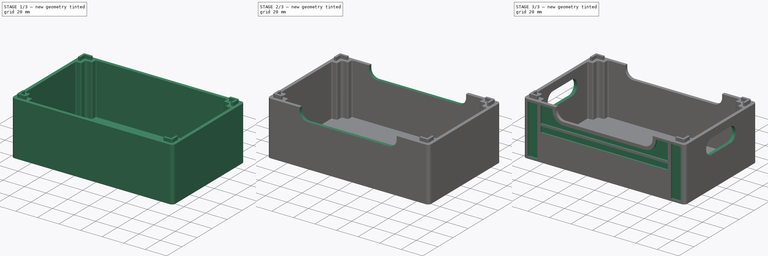
[diagram: build sequence overview — one tinted view per stage of 3, left to right]
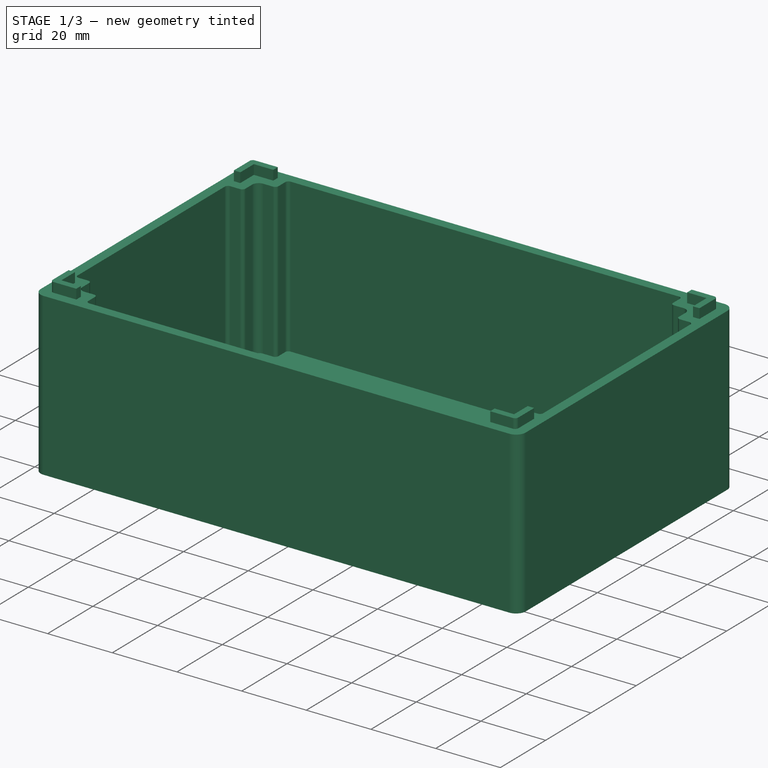
[diagram: stage 1 of 3 — iso view after this stage's code; geometry added in this stage tinted green]
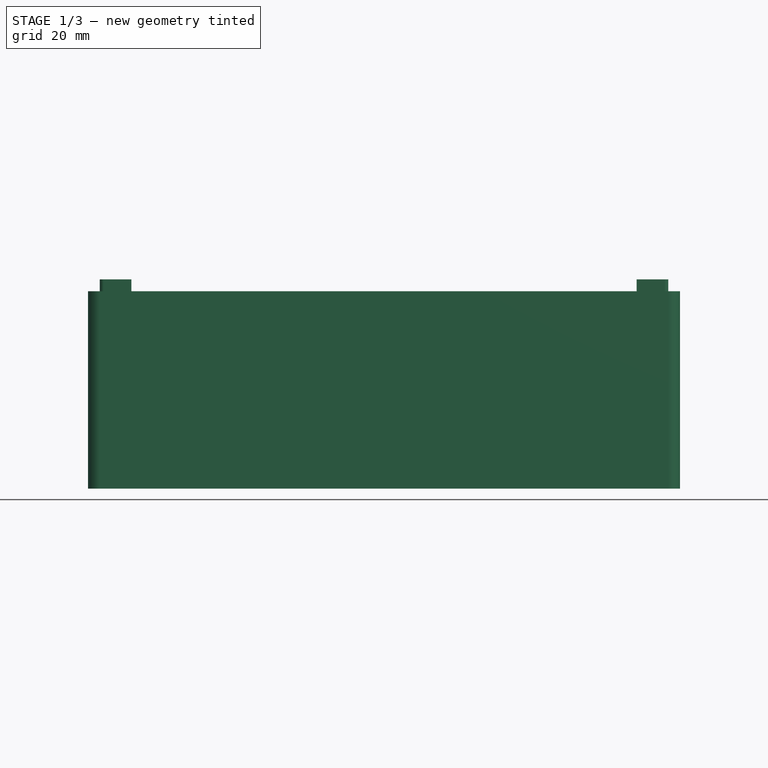
[diagram: stage 1 of 3 — front view after this stage's code; geometry added in this stage tinted green]
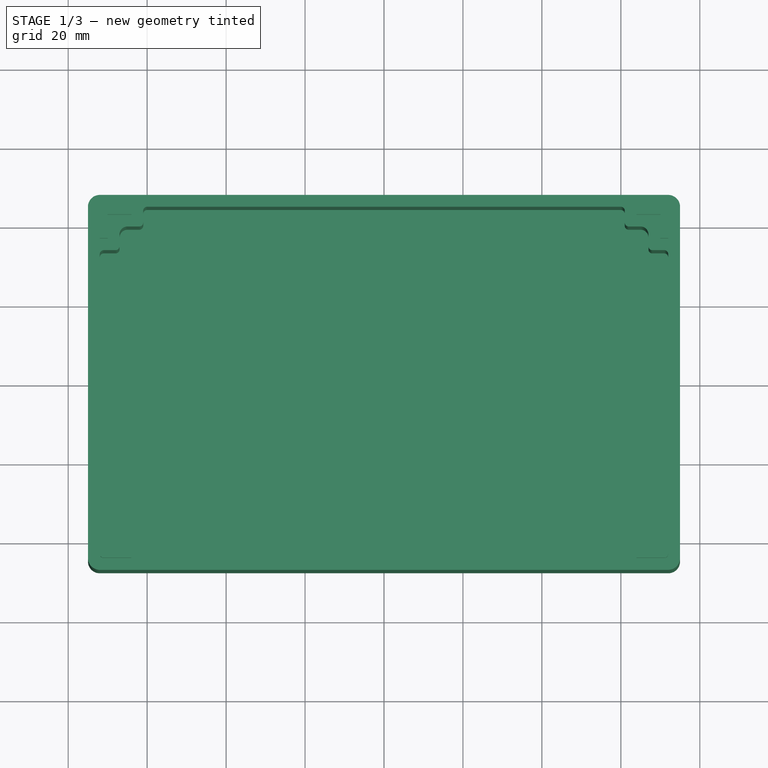
[diagram: stage 1 of 3 — top view after this stage's code; geometry added in this stage tinted green]
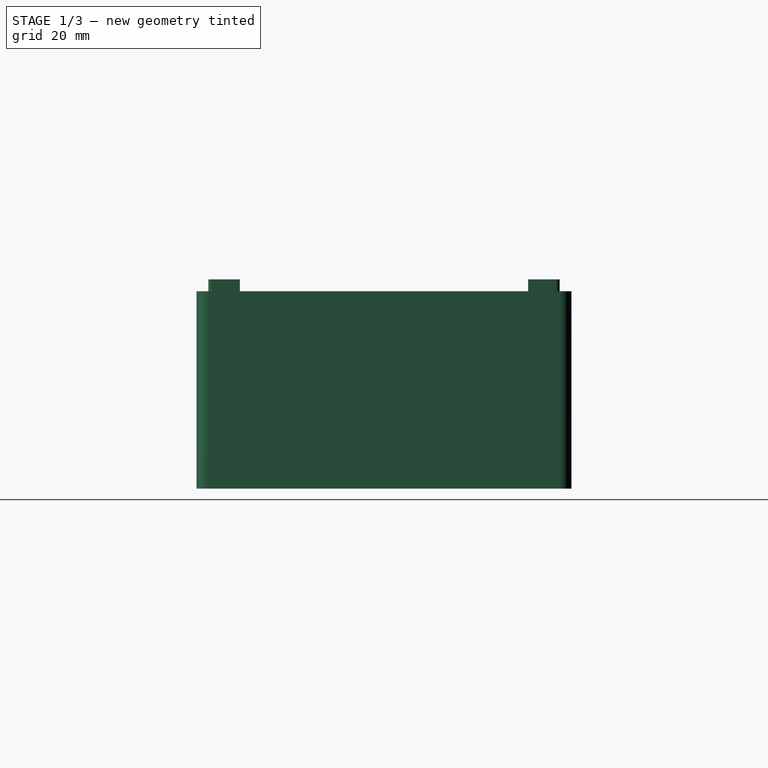
[diagram: stage 1 of 3 — right view after this stage's code; geometry added in this stage tinted green]
FCSTD DOCUMENT  (FreeCAD 0.21R33668 +7 (Git))
Label: Crate_Stackable
License: Creative Commons Attribution 4.0
LicenseURL: http://creativecommons.org/licenses/by/4.0/
objects: Sketcher::SketchObject×10, PartDesign::Pocket×5, PartDesign::Pad×2, Spreadsheet::Sheet×1, PartDesign::Mirrored×1, PartDesign::Body×1
note: 26 computed .brp shape members not serialized (recipe doc carries the construction recipe); baked Part::Feature solids carry a one-line shape summary decoded from their .brp

FEATURE [Spreadsheet::Sheet] Spreadsheet  label="param"
  cells = A1='crate_length; B1(crate_length)=150; A2='crate_width; B2(crate_width)=95; A3='crate_hight; B3(crate_hight)=50; A5='bottom_thickness; B5(bottom_thickness)=2.5; A6='rim_thickness; B6(rim_thickness)=3; A8='handle_widt; B8(handle_widt)=25; A9='handle_hight; B9(handle_hight)=14; A11='connector_thickness; B11(connector_thickness)=2; A12='connector_length; B12(connector_length)=8; A13='connector_height; B13(connector_height)=3; A14='connector_tolerance; B14(connector_tolerance)=0.8
FEATURE [Sketcher::SketchObject] Sketch  label="master_top"
  FullyConstrained = true
  MapMode = 5
  Support = -> [XY_Plane]
  expr: Constraints[109] = <<param>>.connector_thickness
  expr: Constraints[17] = <<param>>.crate_length
  expr: Constraints[182] = <<param>>.crate_width - 2 * <<param>>.rim_thickness
  expr: Constraints[185] = <<param>>.crate_length - 2 * <<param>>.rim_thickness
  expr: Constraints[18] = <<param>>.crate_width
  expr: Constraints[85] = <<param>>.connector_length
  expr: Constraints[87] = <<param>>.crate_length - 6
  expr: Constraints[88] = <<param>>.crate_width - 6
  sketch-geometry (72):
    g0: LineSegment StartX=-72 StartY=47.5 StartZ=0 EndX=72 EndY=47.5 EndZ=0
    g1: LineSegment StartX=75 StartY=44.5 StartZ=0 EndX=75 EndY=-44.5 EndZ=0
    g2: LineSegment StartX=72 StartY=-47.5 StartZ=0 EndX=-72 EndY=-47.5 EndZ=0
    g3: LineSegment StartX=-75 StartY=-44.5 StartZ=0 EndX=-75 EndY=44.5 EndZ=0
    g4: ArcOfCircle CenterX=-72 CenterY=44.5 CenterZ=0 NormalX=0 NormalY=0 NormalZ=1 AngleXU=0 Radius=3 StartAngle=1.5708 EndAngle=3.14159
    g5: ArcOfCircle CenterX=72 CenterY=44.5 CenterZ=0 NormalX=0 NormalY=0 NormalZ=1 AngleXU=0 Radius=3 StartAngle=-9e-16 EndAngle=1.5708
    g6: ArcOfCircle CenterX=72 CenterY=-44.5 CenterZ=0 NormalX=0 NormalY=0 NormalZ=1 AngleXU=0 Radius=3 StartAngle=4.71239 EndAngle=6.28319
    g7: ArcOfCircle CenterX=-72 CenterY=-44.5 CenterZ=0 NormalX=0 NormalY=0 NormalZ=1 AngleXU=0 Radius=3 StartAngle=3.14159 EndAngle=4.71239
    g8: LineSegment StartX=-70 StartY=42.5 StartZ=0 EndX=-70 EndY=36.5 EndZ=0
    g9: LineSegment StartX=-70 StartY=36.5 StartZ=0 EndX=-72 EndY=36.5 EndZ=0
    g10: LineSegment StartX=-72 StartY=36.5 StartZ=0 EndX=-72 EndY=44.5 EndZ=0
    g11: LineSegment StartX=-72 StartY=44.5 StartZ=0 EndX=-64 EndY=44.5 EndZ=0
    g12: LineSegment StartX=-64 StartY=44.5 StartZ=0 EndX=-64 EndY=42.5 EndZ=0
    g13: LineSegment StartX=-64 StartY=42.5 StartZ=0 EndX=-70 EndY=42.5 EndZ=0
    g14: LineSegment StartX=64 StartY=42.5 StartZ=0 EndX=70 EndY=42.5 EndZ=0
    g15: LineSegment StartX=70 StartY=42.5 StartZ=0 EndX=70 EndY=36.5 EndZ=0
    g16: LineSegment StartX=70 StartY=36.5 StartZ=0 EndX=72 EndY=36.5 EndZ=0
    g17: LineSegment StartX=64 StartY=44.5 StartZ=0 EndX=64 EndY=42.5 EndZ=0
    g18: LineSegment StartX=64 StartY=44.5 StartZ=0 EndX=72 EndY=44.5 EndZ=0
    g19: LineSegment StartX=72 StartY=44.5 StartZ=0 EndX=72 EndY=36.5 EndZ=0
    g20: LineSegment StartX=72 StartY=-36.5 StartZ=0 EndX=70 EndY=-36.5 EndZ=0
    g21: LineSegment StartX=70 StartY=-36.5 StartZ=0 EndX=70 EndY=-42.5 EndZ=0
    g22: LineSegment StartX=70 StartY=-42.5 StartZ=0 EndX=64 EndY=-42.5 EndZ=0
    g23: LineSegment StartX=64 StartY=-42.5 StartZ=0 EndX=64 EndY=-44.5 EndZ=0
    g24: LineSegment StartX=64 StartY=-44.5 StartZ=0 EndX=72 EndY=-44.5 EndZ=0
    g25: LineSegment StartX=72 StartY=-44.5 StartZ=0 EndX=72 EndY=-36.5 EndZ=0
    g26: LineSegment StartX=-70 StartY=-36.5 StartZ=0 EndX=-70 EndY=-42.5 EndZ=0
    g27: LineSegment StartX=-70 StartY=-42.5 StartZ=0 EndX=-64 EndY=-42.5 EndZ=0
    g28: LineSegment StartX=-64 StartY=-42.5 StartZ=0 EndX=-64 EndY=-44.5 EndZ=0
    g29: LineSegment StartX=-64 StartY=-44.5 StartZ=0 EndX=-72 EndY=-44.5 EndZ=0
    g30: LineSegment StartX=-72 StartY=-44.5 StartZ=0 EndX=-72 EndY=-36.5 EndZ=0
    g31: LineSegment StartX=-72 StartY=-36.5 StartZ=0 EndX=-70 EndY=-36.5 EndZ=0
    g32: LineSegment StartX=-72 StartY=32.5 StartZ=0 EndX=-72 EndY=-32.5 EndZ=0
    g33: LineSegment StartX=-71 StartY=-33.5 StartZ=0 EndX=-68 EndY=-33.5 EndZ=0
    g34: LineSegment StartX=-67 StartY=-34.5 StartZ=0 EndX=-67 EndY=-37.5 EndZ=0
    g35: LineSegment StartX=-65 StartY=-39.5 StartZ=0 EndX=-62 EndY=-39.5 EndZ=0
    g36: LineSegment StartX=-61 StartY=-40.5 StartZ=0 EndX=-61 EndY=-43.5 EndZ=0
    g37: LineSegment StartX=-60 StartY=-44.5 StartZ=0 EndX=60 EndY=-44.5 EndZ=0
    g38: LineSegment StartX=61 StartY=-43.5 StartZ=0 EndX=61 EndY=-40.5 EndZ=0
    g39: LineSegment StartX=62 StartY=-39.5 StartZ=0 EndX=65 EndY=-39.5 EndZ=0
    g40: LineSegment StartX=67 StartY=-37.5 StartZ=0 EndX=67 EndY=-34.5 EndZ=0
    g41: LineSegment StartX=68 StartY=-33.5 StartZ=0 EndX=71 EndY=-33.5 EndZ=0
    g42: LineSegment StartX=72 StartY=-32.5 StartZ=0 EndX=72 EndY=32.5 EndZ=0
    g43: LineSegment StartX=71 StartY=33.5 StartZ=0 EndX=68 EndY=33.5 EndZ=0
    g44: LineSegment StartX=67 StartY=34.5 StartZ=0 EndX=67 EndY=37.5 EndZ=0
    g45: LineSegment StartX=65 StartY=39.5 StartZ=0 EndX=62 EndY=39.5 EndZ=0
    g46: LineSegment StartX=61 StartY=40.5 StartZ=0 EndX=61 EndY=43.5 EndZ=0
    g47: LineSegment StartX=60 StartY=44.5 StartZ=0 EndX=-60 EndY=44.5 EndZ=0
    g48: LineSegment StartX=-61 StartY=43.5 StartZ=0 EndX=-61 EndY=40.5 EndZ=0
    g49: LineSegment StartX=-62 StartY=39.5 StartZ=0 EndX=-65 EndY=39.5 EndZ=0
    g50: LineSegment StartX=-67 StartY=37.5 StartZ=0 EndX=-67 EndY=34.5 EndZ=0
    g51: LineSegment StartX=-68 StartY=33.5 StartZ=0 EndX=-71 EndY=33.5 EndZ=0
    g52: ArcOfCircle CenterX=65 CenterY=-37.5 CenterZ=0 NormalX=0 NormalY=0 NormalZ=1 AngleXU=0 Radius=2 StartAngle=4.71239 EndAngle=6.28319
    g53: ArcOfCircle CenterX=68 CenterY=-34.5 CenterZ=0 NormalX=0 NormalY=0 NormalZ=1 AngleXU=0 Radius=1 StartAngle=1.5708 EndAngle=3.14159
    g54: ArcOfCircle CenterX=62 CenterY=-40.5 CenterZ=0 NormalX=0 NormalY=0 NormalZ=1 AngleXU=0 Radius=1 StartAngle=1.5708 EndAngle=3.14159
    g55: ArcOfCircle CenterX=60 CenterY=-43.5 CenterZ=0 NormalX=0 NormalY=0 NormalZ=1 AngleXU=0 Radius=1 StartAngle=4.71239 EndAngle=6.28319
    g56: ArcOfCircle CenterX=71 CenterY=-32.5 CenterZ=0 NormalX=0 NormalY=0 NormalZ=1 AngleXU=0 Radius=1 StartAngle=4.71239 EndAngle=6.28319
    g57: ArcOfCircle CenterX=71 CenterY=32.5 CenterZ=0 NormalX=0 NormalY=0 NormalZ=1 AngleXU=0 Radius=1 StartAngle=3e-16 EndAngle=1.5708
    g58: ArcOfCircle CenterX=68 CenterY=34.5 CenterZ=0 NormalX=0 NormalY=0 NormalZ=1 AngleXU=0 Radius=1 StartAngle=3.14159 EndAngle=4.71239
    g59: ArcOfCircle CenterX=65 CenterY=37.5 CenterZ=0 NormalX=0 NormalY=0 NormalZ=1 AngleXU=0 Radius=2 StartAngle=1.4e-15 EndAngle=1.5708
    g60: ArcOfCircle CenterX=62 CenterY=40.5 CenterZ=0 NormalX=0 NormalY=0 NormalZ=1 AngleXU=0 Radius=1 StartAngle=3.14159 EndAngle=4.71239
    g61: ArcOfCircle CenterX=60 CenterY=43.5 CenterZ=0 NormalX=0 NormalY=0 NormalZ=1 AngleXU=0 Radius=1 StartAngle=2.5e-15 EndAngle=1.5708
    g62: ArcOfCircle CenterX=-62 CenterY=40.5 CenterZ=0 NormalX=0 NormalY=0 NormalZ=1 AngleXU=0 Radius=1 StartAngle=4.71239 EndAngle=6.28319
    g63: ArcOfCircle CenterX=-60 CenterY=43.5 CenterZ=0 NormalX=0 NormalY=0 NormalZ=1 AngleXU=0 Radius=1 StartAngle=1.5708 EndAngle=3.14159
    g64: ArcOfCircle CenterX=-65 CenterY=37.5 CenterZ=0 NormalX=0 NormalY=0 NormalZ=1 AngleXU=0 Radius=2 StartAngle=1.5708 EndAngle=3.14159
    g65: ArcOfCircle CenterX=-68 CenterY=34.5 CenterZ=0 NormalX=0 NormalY=0 NormalZ=1 AngleXU=0 Radius=1 StartAngle=4.71239 EndAngle=6.28319
    g66: ArcOfCircle CenterX=-71 CenterY=32.5 CenterZ=0 NormalX=0 NormalY=0 NormalZ=1 AngleXU=0 Radius=1 StartAngle=1.5708 EndAngle=3.14159
    g67: ArcOfCircle CenterX=-60 CenterY=-43.5 CenterZ=0 NormalX=0 NormalY=0 NormalZ=1 AngleXU=0 Radius=1 StartAngle=3.14159 EndAngle=4.71239
    g68: ArcOfCircle CenterX=-62 CenterY=-40.5 CenterZ=0 NormalX=0 NormalY=0 NormalZ=1 AngleXU=0 Radius=1 StartAngle=1e-15 EndAngle=1.5708
    g69: ArcOfCircle CenterX=-65 CenterY=-37.5 CenterZ=0 NormalX=0 NormalY=0 NormalZ=1 AngleXU=0 Radius=2 StartAngle=3.14159 EndAngle=4.71239
    g70: ArcOfCircle CenterX=-68 CenterY=-34.5 CenterZ=0 NormalX=0 NormalY=0 NormalZ=1 AngleXU=0 Radius=1 StartAngle=2.6e-15 EndAngle=1.5708
    g71: ArcOfCircle CenterX=-71 CenterY=-32.5 CenterZ=0 NormalX=0 NormalY=0 NormalZ=1 AngleXU=0 Radius=1 StartAngle=3.14159 EndAngle=4.71239
  constraints (188):
    c: Horizontal(g0)
    c: Horizontal(g2)
    c: Vertical(g1)
    c: Vertical(g3)
    c: Tangent(g0,g4) = 1.5708
    c: Tangent(g3,g4) = 1.5708
    c: Tangent(g0,g5) = 1.5708
    c: Tangent(g1,g5) = 1.5708
    c: Tangent(g1,g6) = 1.5708
    c: Tangent(g2,g6) = 1.5708
    c: Tangent(g2,g7) = 1.5708
    c: Tangent(g3,g7) = 1.5708
    c: Equal(g4,g5)
    c: Equal(g5,g6)
    c: Equal(g6,g7)
    c: Radius(g5) = 3
    c: Symmetric(g5,g7,g-1)
    c: DistanceX(g3,g1) = 150
    c: DistanceY(g2,g0) = 95
    c: Vertical(g8)
    c: Coincident(g8,g9)
    c: Horizontal(g9)
    c: Coincident(g9,g10)
    c: Vertical(g10)
    c: Coincident(g10,g11)
    c: Horizontal(g11)
    c: Coincident(g11,g12)
    c: Vertical(g12)
    c: Coincident(g12,g13)
    c: Coincident(g13,g8)
    c: Horizontal(g13)
    c: Coincident(g14,g15)
    c: Coincident(g15,g16)
    c: Coincident(g17,g14)
    c: Horizontal(g14)
    c: Horizontal(g16)
    c: Vertical(g15)
    c: Vertical(g17)
    c: Horizontal(g18)
    c: Coincident(g18,g19)
    c: Vertical(g19)
    c: Coincident(g16,g19)
    c: Coincident(g17,g18)
    c: Horizontal(g20)
    c: Coincident(g20,g21)
    c: Vertical(g21)
    c: Coincident(g21,g22)
    c: Horizontal(g22)
    c: Coincident(g22,g23)
    c: Vertical(g23)
    c: Coincident(g23,g24)
    c: Horizontal(g24)
    c: Coincident(g24,g25)
    c: Coincident(g25,g20)
    c: Vertical(g25)
    c: Vertical(g26)
    c: Coincident(g26,g27)
    c: Horizontal(g27)
    c: Coincident(g27,g28)
    c: Vertical(g28)
    c: Coincident(g28,g29)
    c: Coincident(g29,g30)
    c: Vertical(g30)
    c: Coincident(g30,g31)
    c: Coincident(g31,g26)
    c: Horizontal(g31)
    c: Horizontal(g29)
    c: Horizontal(g12,g14)
    c: Horizontal(g11,g17)
    c: Horizontal(g28,g23)
    c: Horizontal(g27,g22)
    c: Vertical(g15,g20)
    c: Vertical(g20,g16)
    c: Vertical(g9,g30)
    c: Vertical(g8,g26)
    c: Equal(g10,g11)
    c: Equal(g11,g18)
    c: Equal(g18,g19)
    c: Equal(g19,g25)
    c: Equal(g25,g24)
    c: Equal(g24,g29)
    c: Equal(g29,g30)
    c: Equal(g9,g12)
    c: Equal(g17,g16)
    c: Equal(g20,g23)
    c: DistanceX(g11,g11) = 8
    c: Symmetric(g26,g14,g-1)
    c: DistanceX(g10,g18) = 144
    c: DistanceY(g29,g10) = 89
    c: Vertical(g32)
    c: Horizontal(g33)
    c: Vertical(g34)
    c: Horizontal(g35)
    c: Horizontal(g37)
    c: Vertical(g38)
    c: Vertical(g40)
    c: Horizontal(g41)
    c: Vertical(g42)
    c: Vertical(g46)
    c: Horizontal(g47)
    c: Horizontal(g49)
    c: Horizontal(g51)
    c: Horizontal(g45)
    c: Horizontal(g43)
    c: Horizontal(g39)
    c: Vertical(g36)
    c: Vertical(g44)
    c: Vertical(g48)
    c: Vertical(g50)
    c: DistanceX(g9,g9) = 2
    c: Equal(g51,g48)
    c: Equal(g48,g46)
    c: Equal(g46,g43)
    c: Equal(g43,g41)
    c: Equal(g41,g38)
    c: Equal(g38,g36)
    c: Equal(g36,g33)
    c: Equal(g35,g34)
    c: Equal(g34,g50)
    c: Equal(g50,g49)
    c: Equal(g49,g45)
    c: Equal(g45,g44)
    c: Tangent(g39,g52) = -1.5708
    c: Tangent(g40,g52) = -1.5708
    c: Tangent(g40,g53) = 1.5708
    c: Tangent(g41,g53) = 1.5708
    c: Tangent(g38,g54) = 1.5708
    c: Tangent(g39,g54) = 1.5708
    c: Tangent(g37,g55) = -1.5708
    c: Tangent(g38,g55) = -1.5708
    c: Tangent(g41,g56) = -1.5708
    c: Tangent(g42,g56) = -1.5708
    c: Tangent(g42,g57) = -1.5708
    c: Tangent(g43,g57) = -1.5708
    c: Tangent(g43,g58) = 1.5708
    c: Tangent(g44,g58) = 1.5708
    c: Tangent(g44,g59) = -1.5708
    c: Tangent(g45,g59) = -1.5708
    c: Tangent(g45,g60) = 1.5708
    c: Tangent(g46,g60) = 1.5708
    c: Tangent(g46,g61) = -1.5708
    c: Tangent(g47,g61) = -1.5708
    c: Tangent(g48,g62) = 1.5708
    c: Tangent(g49,g62) = 1.5708
    c: Tangent(g47,g63) = -1.5708
    c: Tangent(g48,g63) = -1.5708
    c: Tangent(g49,g64) = -1.5708
    c: Tangent(g50,g64) = -1.5708
    c: Tangent(g50,g65) = 1.5708
    c: Tangent(g51,g65) = 1.5708
    c: Tangent(g32,g66) = -1.5708
    c: Tangent(g51,g66) = -1.5708
    c: Tangent(g36,g67) = -1.5708
    c: Tangent(g37,g67) = -1.5708
    c: Tangent(g35,g68) = 1.5708
    c: Tangent(g36,g68) = 1.5708
    c: Tangent(g34,g69) = -1.5708
    c: Tangent(g35,g69) = -1.5708
    c: Tangent(g33,g70) = 1.5708
    c: Tangent(g34,g70) = 1.5708
    c: Tangent(g32,g71) = -1.5708
    c: Tangent(g33,g71) = -1.5708
    c: Equal(g66,g65)
    c: Equal(g65,g62)
    c: Equal(g62,g63)
    c: Equal(g63,g61)
    c: Equal(g61,g60)
    c: Equal(g60,g58)
    c: Equal(g58,g57)
    c: Equal(g57,g56)
    c: Equal(g56,g53)
    c: Equal(g53,g54)
    c: Equal(g54,g55)
    c: Equal(g55,g67)
    c: Equal(g67,g68)
    c: Equal(g68,g70)
    c: Equal(g70,g71)
    c: Equal(g64,g59)
    c: Equal(g59,g52)
    c: Equal(g52,g69)
    c: Radius(g69) = 2
    c: Radius(g68) = 1
    c: DistanceY(g37,g47) = 89
    c: Symmetric(g47,g37,g-1)
    c: Symmetric(g42,g32,g-2)
    c: DistanceX(g32,g42) = 144
    c: DistanceX(g40,g20) = 3
    c: DistanceY(g20,g41) = 3
FEATURE [Sketcher::SketchObject] Sketch001  label="master_side"
  FullyConstrained = true
  MapMode = 5
  Placement = pos=(0,0,0) rot=(1,0,0;1.5708rad)
  Support = -> [XZ_Plane]
  expr: Constraints[102] = <<param>>.rim_thickness
  expr: Constraints[23] = <<param>>.crate_length * 0.6
  expr: Constraints[24] = <<param>>.crate_length * 0.5
  expr: Constraints[31] = <<param>>.crate_length - 30
  expr: Constraints[7] = <<param>>.crate_length - 4
  expr: Constraints[83] = <<param>>.crate_length - 32
  expr: Constraints[86] = <<param>>.rim_thickness + <<param>>.handle_hight + 2 * (7 - <<param>>.rim_thickness)
  expr: Constraints[8] = <<param>>.crate_hight
  sketch-geometry (39):
    g0: LineSegment StartX=-73 StartY=0 StartZ=0 EndX=73 EndY=0 EndZ=0
    g1: LineSegment StartX=73 StartY=0 StartZ=0 EndX=73 EndY=50 EndZ=0
    g2: LineSegment StartX=-73 StartY=50 StartZ=0 EndX=-73 EndY=0 EndZ=0
    g3: LineSegment StartX=-45 StartY=50 StartZ=0 EndX=-45 EndY=47 EndZ=0
    g4: ArcOfCircle CenterX=-37.5 CenterY=47 CenterZ=0 NormalX=0 NormalY=0 NormalZ=1 AngleXU=0 Radius=7.5 StartAngle=3.14159 EndAngle=4.71239
    g5: LineSegment StartX=-37.5 StartY=39.5 StartZ=0 EndX=37.5 EndY=39.5 EndZ=0
    g6: ArcOfCircle CenterX=37.5 CenterY=47 CenterZ=0 NormalX=0 NormalY=0 NormalZ=1 AngleXU=0 Radius=7.5 StartAngle=4.71239 EndAngle=6.28319
    g7: LineSegment StartX=45 StartY=47 StartZ=0 EndX=45 EndY=50 EndZ=0
    g8: LineSegment StartX=-45 StartY=50 StartZ=0 EndX=-73 EndY=50 EndZ=0
    g9: LineSegment StartX=45 StartY=50 StartZ=0 EndX=73 EndY=50 EndZ=0
    g10: LineSegment StartX=-60 StartY=50 StartZ=0 EndX=-60 EndY=0 EndZ=0
    g11: LineSegment StartX=60 StartY=50 StartZ=0 EndX=60 EndY=0 EndZ=0
    g12: LineSegment StartX=-71 StartY=48 StartZ=0 EndX=-62 EndY=48 EndZ=0
    g13: LineSegment StartX=-62 StartY=48 StartZ=0 EndX=-62 EndY=2 EndZ=0
    g14: LineSegment StartX=-62 StartY=2 StartZ=0 EndX=-71 EndY=2 EndZ=0
    g15: LineSegment StartX=-71 StartY=2 StartZ=0 EndX=-71 EndY=48 EndZ=0
    g16: LineSegment StartX=62 StartY=48 StartZ=0 EndX=71 EndY=48 EndZ=0
    g17: LineSegment StartX=71 StartY=48 StartZ=0 EndX=71 EndY=2 EndZ=0
    g18: LineSegment StartX=71 StartY=2 StartZ=0 EndX=62 EndY=2 EndZ=0
    g19: LineSegment StartX=62 StartY=2 StartZ=0 EndX=62 EndY=48 EndZ=0
    g20: GeomPoint X=-66.5 Y=25 Z=0
    g21: GeomPoint X=66.5 Y=25 Z=0
    g22: ArcOfCircle CenterX=-37.5 CenterY=47 CenterZ=0 NormalX=0 NormalY=0 NormalZ=1 AngleXU=0 Radius=10.5 StartAngle=3.14159 EndAngle=4.71239
    g23: LineSegment StartX=-37.5 StartY=36.5 StartZ=0 EndX=37.5 EndY=36.5 EndZ=0
    g24: LineSegment StartX=59 StartY=48 StartZ=0 EndX=59 EndY=32.5 EndZ=0
    g25: LineSegment StartX=59 StartY=32.5 StartZ=0 EndX=-59 EndY=32.5 EndZ=0
    g26: LineSegment StartX=-59 StartY=32.5 StartZ=0 EndX=-59 EndY=48 EndZ=0
    g27: ArcOfCircle CenterX=37.5 CenterY=47 CenterZ=0 NormalX=0 NormalY=0 NormalZ=1 AngleXU=0 Radius=10.5 StartAngle=4.71239 EndAngle=6.28319
    g28: LineSegment StartX=45 StartY=47 StartZ=0 EndX=48 EndY=47 EndZ=0
    g29: LineSegment StartX=-48 StartY=47 StartZ=0 EndX=-45 EndY=47 EndZ=0
    g30: LineSegment StartX=48 StartY=47 StartZ=0 EndX=48 EndY=50 EndZ=0
    g31: LineSegment StartX=-59 StartY=30.5 StartZ=0 EndX=59 EndY=30.5 EndZ=0
    g32: LineSegment StartX=59 StartY=30.5 StartZ=0 EndX=59 EndY=25 EndZ=0
    g33: LineSegment StartX=59 StartY=25 StartZ=0 EndX=-59 EndY=25 EndZ=0
    g34: LineSegment StartX=-59 StartY=25 StartZ=0 EndX=-59 EndY=30.5 EndZ=0
    g35: LineSegment StartX=48 StartY=47 StartZ=0 EndX=48 EndY=48 EndZ=0
    g36: LineSegment StartX=48 StartY=48 StartZ=0 EndX=59 EndY=48 EndZ=0
    g37: LineSegment StartX=-59 StartY=48 StartZ=0 EndX=-48 EndY=48 EndZ=0
    g38: LineSegment StartX=-48 StartY=48 StartZ=0 EndX=-48 EndY=47 EndZ=0
  constraints (103):
    c: Coincident(g0,g1)
    c: Coincident(g8,g2)
    c: Coincident(g2,g0)
    c: Vertical(g1)
    c: Vertical(g2)
    c: PointOnObject(g0,g-1)
    c: Symmetric(g0,g0,g-2)
    c: DistanceX(g8,g1) = 146
    c: DistanceY(g2,g2) = 50
    c: Vertical(g3)
    c: Tangent(g3,g4) = -1.5708
    c: Tangent(g4,g5) = -1.5708
    c: Tangent(g5,g6) = -1.5708
    c: Tangent(g6,g7) = -1.5708
    c: Horizontal(g8)
    c: Coincident(g8,g3)
    c: Coincident(g9,g7)
    c: Coincident(g9,g1)
    c: Horizontal(g9)
    c: Equal(g2,g1)
    c: Horizontal(g5)
    c: Vertical(g7)
    c: Symmetric(g6,g4,g-2)
    c: DistanceX(g3,g7) = 90
    c: DistanceX(g5,g5) = 75
    c: PointOnObject(g10,g8)
    c: PointOnObject(g10,g0)
    c: Vertical(g10)
    c: PointOnObject(g11,g9)
    c: Vertical(g11)
    c: Symmetric(g10,g11,g-2)
    c: DistanceX(g10,g11) = 120
    c: Coincident(g12,g13)
    c: Coincident(g13,g14)
    c: Coincident(g14,g15)
    c: Coincident(g15,g12)
    c: Horizontal(g12)
    c: Horizontal(g14)
    c: Vertical(g13)
    c: Vertical(g15)
    c: Coincident(g16,g17)
    c: Coincident(g17,g18)
    c: Coincident(g18,g19)
    c: Coincident(g19,g16)
    c: Horizontal(g16)
    c: Horizontal(g18)
    c: Vertical(g17)
    c: Vertical(g19)
    c: Symmetric(g0,g10,g20)
    c: Symmetric(g11,g0,g21)
    c: Symmetric(g18,g16,g21)
    c: Symmetric(g13,g12,g20)
    c: Equal(g13,g19)
    c: Equal(g14,g18)
    c: DistanceX(g0,g14) = 2
    c: Tangent(g22,g23) = -1.5708
    c: Coincident(g24,g25)
    c: Coincident(g25,g26)
    c: Vertical(g26)
    c: Vertical(g24)
    c: Coincident(g27,g6)
    c: Coincident(g22,g4)
    c: Coincident(g28,g6)
    c: Horizontal(g28)
    c: Horizontal(g24,g16)
    c: Coincident(g29,g3)
    c: Horizontal(g29)
    c: Horizontal(g23)
    c: PointOnObject(g30,g9)
    c: Vertical(g30)
    c: Equal(g30,g28)
    c: Symmetric(g25,g24,g-2)
    c: Coincident(g31,g32)
    c: Coincident(g32,g33)
    c: Coincident(g33,g34)
    c: Coincident(g34,g31)
    c: Horizontal(g31)
    c: Horizontal(g33)
    c: Vertical(g32)
    c: Vertical(g34)
    c: Vertical(g31,g25)
    c: DistanceY(g31,g25) = 2
    c: Vertical(g31,g24)
    c: DistanceX(g33,g33) = 118
    c: Tangent(g27,g23) = -1.5708
    c: DistanceY(g24,g23) = 4
    c: DistanceY(g32,g1) = 25
    c: Coincident(g35,g27)
    c: PointOnObject(g35,g30)
    c: Coincident(g36,g35)
    c: Horizontal(g36)
    c: Coincident(g36,g24)
    c: DistanceY(g16,g1) = 2
    c: Coincident(g26,g37)
    c: Horizontal(g37)
    c: Coincident(g37,g38)
    c: Coincident(g38,g22)
    c: Coincident(g22,g29)
    c: Vertical(g38)
    c: Horizontal(g37,g35)
    c: Coincident(g28,g27)
    c: Coincident(g30,g27)
    c: DistanceY(g7,g7) = 3
FEATURE [Sketcher::SketchObject] Sketch002  label="master_front"
  FullyConstrained = true
  MapMode = 5
  Placement = pos=(0,0,0) rot=(0.57735,0.57735,0.57735;2.0944rad)
  Support = -> [YZ_Plane]
  expr: Constraints[10] = <<param>>.crate_width - 4
  expr: Constraints[17] = <<param>>.handle_widt
  expr: Constraints[18] = <<param>>.handle_hight
  expr: Constraints[26] = <<param>>.crate_width - 30
  expr: Constraints[88] = <<param>>.crate_width - 32
  expr: Constraints[8] = <<param>>.crate_hight
  sketch-geometry (37):
    g0: LineSegment StartX=-45.5 StartY=0 StartZ=0 EndX=45.5 EndY=0 EndZ=0
    g1: LineSegment StartX=45.5 StartY=0 StartZ=0 EndX=45.5 EndY=50 EndZ=0
    g2: LineSegment StartX=45.5 StartY=50 StartZ=0 EndX=-45.5 EndY=50 EndZ=0
    g3: LineSegment StartX=-45.5 StartY=50 StartZ=0 EndX=-45.5 EndY=0 EndZ=0
    g4: ArcOfCircle CenterX=-12.5 CenterY=36 CenterZ=0 NormalX=0 NormalY=0 NormalZ=1 AngleXU=0 Radius=7 StartAngle=1.5708 EndAngle=4.71239
    g5: ArcOfCircle CenterX=12.5 CenterY=36 CenterZ=0 NormalX=0 NormalY=0 NormalZ=1 AngleXU=0 Radius=7 StartAngle=4.71239 EndAngle=7.85398
    g6: LineSegment StartX=-12.5 StartY=29 StartZ=0 EndX=12.5 EndY=29 EndZ=0
    g7: LineSegment StartX=12.5 StartY=43 StartZ=0 EndX=-12.5 EndY=43 EndZ=0
    g8: LineSegment StartX=-32.5 StartY=50 StartZ=0 EndX=-32.5 EndY=0 EndZ=0
    g9: LineSegment StartX=32.5 StartY=50 StartZ=0 EndX=32.5 EndY=0 EndZ=0
    g10: GeomPoint X=-39 Y=25 Z=0
    g11: GeomPoint X=39 Y=25 Z=0
    g12: LineSegment StartX=-43.5 StartY=48 StartZ=0 EndX=-34.5 EndY=48 EndZ=0
    g13: LineSegment StartX=-34.5 StartY=48 StartZ=0 EndX=-34.5 EndY=2 EndZ=0
    g14: LineSegment StartX=-34.5 StartY=2 StartZ=0 EndX=-43.5 EndY=2 EndZ=0
    g15: LineSegment StartX=-43.5 StartY=2 StartZ=0 EndX=-43.5 EndY=48 EndZ=0
    g16: LineSegment StartX=34.5 StartY=48 StartZ=0 EndX=43.5 EndY=48 EndZ=0
    g17: LineSegment StartX=43.5 StartY=48 StartZ=0 EndX=43.5 EndY=2 EndZ=0
    g18: LineSegment StartX=43.5 StartY=2 StartZ=0 EndX=34.5 EndY=2 EndZ=0
    g19: LineSegment StartX=34.5 StartY=2 StartZ=0 EndX=34.5 EndY=48 EndZ=0
    g20: ArcOfCircle CenterX=-12.5 CenterY=36 CenterZ=0 NormalX=0 NormalY=0 NormalZ=1 AngleXU=0 Radius=9 StartAngle=1.5708 EndAngle=3.03025
    g21: ArcOfCircle CenterX=-12.5 CenterY=36 CenterZ=0 NormalX=0 NormalY=0 NormalZ=1 AngleXU=0 Radius=9 StartAngle=3.25293 EndAngle=4.71239
    g22: ArcOfCircle CenterX=12.5 CenterY=36 CenterZ=0 NormalX=0 NormalY=0 NormalZ=1 AngleXU=0 Radius=9 StartAngle=4.71239 EndAngle=6.17184
    g23: ArcOfCircle CenterX=12.5 CenterY=36 CenterZ=0 NormalX=0 NormalY=0 NormalZ=1 AngleXU=0 Radius=9 StartAngle=0.111341 EndAngle=1.5708
    g24: LineSegment StartX=-12.5 StartY=45 StartZ=0 EndX=12.5 EndY=45 EndZ=0
    g25: LineSegment StartX=-12.5 StartY=27 StartZ=0 EndX=12.5 EndY=27 EndZ=0
    g26: LineSegment StartX=21.4443 StartY=37 StartZ=0 EndX=31.5 EndY=37 EndZ=0
    g27: LineSegment StartX=21.4443 StartY=35 StartZ=0 EndX=31.5 EndY=35 EndZ=0
    g28: LineSegment StartX=-21.4443 StartY=35 StartZ=0 EndX=-31.5 EndY=35 EndZ=0
    g29: LineSegment StartX=-21.4443 StartY=37 StartZ=0 EndX=-31.5 EndY=37 EndZ=0
    g30: LineSegment StartX=-12.5 StartY=36 StartZ=0 EndX=12.5 EndY=36 EndZ=0
    g31: LineSegment StartX=-31.5 StartY=37 StartZ=0 EndX=-31.5 EndY=48 EndZ=0
    g32: LineSegment StartX=-31.5 StartY=48 StartZ=0 EndX=31.5 EndY=48 EndZ=0
    g33: LineSegment StartX=31.5 StartY=48 StartZ=0 EndX=31.5 EndY=37 EndZ=0
    g34: LineSegment StartX=31.5 StartY=35 StartZ=0 EndX=31.5 EndY=24 EndZ=0
    g35: LineSegment StartX=31.5 StartY=24 StartZ=0 EndX=-31.5 EndY=24 EndZ=0
    g36: LineSegment StartX=-31.5 StartY=24 StartZ=0 EndX=-31.5 EndY=35 EndZ=0
  constraints (95):
    c: Coincident(g0,g1)
    c: Coincident(g1,g2)
    c: Coincident(g2,g3)
    c: Coincident(g3,g0)
    c: Horizontal(g2)
    c: Vertical(g1)
    c: Vertical(g3)
    c: PointOnObject(g0,g-1)
    c: DistanceY(g3,g3) = 50
    c: Symmetric(g0,g0,g-2)
    c: DistanceX(g2,g2) = 91
    c: Tangent(g4,g6) = -1.5708
    c: Tangent(g6,g5) = -1.5708
    c: Tangent(g5,g7) = -1.5708
    c: Tangent(g7,g4) = -1.5708
    c: Equal(g4,g5)
    c: Symmetric(g5,g4,g-2)
    c: DistanceX(g6,g6) = 25
    c: DistanceY(g5,g5) = 14
    c: DistanceY(g4,g2) = 7
    c: PointOnObject(g8,g2)
    c: PointOnObject(g8,g0)
    c: Vertical(g8)
    c: Vertical(g9)
    c: PointOnObject(g9,g2)
    c: Symmetric(g8,g9,g-2)
    c: DistanceX(g8,g9) = 65
    c: Symmetric(g2,g8,g10)
    c: Symmetric(g9,g1,g11)
    c: Coincident(g12,g13)
    c: Coincident(g13,g14)
    c: Coincident(g14,g15)
    c: Coincident(g15,g12)
    c: Horizontal(g12)
    c: Horizontal(g14)
    c: Vertical(g13)
    c: Vertical(g15)
    c: Coincident(g16,g17)
    c: Coincident(g17,g18)
    c: Coincident(g18,g19)
    c: Coincident(g19,g16)
    c: Horizontal(g16)
    c: Horizontal(g18)
    c: Vertical(g17)
    c: Vertical(g19)
    c: Symmetric(g17,g16,g11)
    c: Symmetric(g14,g12,g10)
    c: Equal(g14,g18)
    c: Equal(g13,g19)
    c: DistanceY(g16,g1) = 2
    c: DistanceX(g0,g14) = 2
    c: Coincident(g20,g4)
    c: Coincident(g21,g4)
    c: Coincident(g22,g5)
    c: Coincident(g23,g5)
    c: Horizontal(g24)
    c: Coincident(g26,g23)
    c: Horizontal(g26)
    c: Coincident(g27,g22)
    c: Horizontal(g27)
    c: Coincident(g28,g21)
    c: Horizontal(g28)
    c: Coincident(g29,g20)
    c: Horizontal(g29)
    c: Coincident(g30,g4)
    c: Coincident(g30,g5)
    c: Tangent(g25,g22) = -1.5708
    c: Tangent(g24,g23) = 1.5708
    c: Tangent(g24,g20) = 1.5708
    c: Tangent(g25,g21) = -1.5708
    c: Coincident(g29,g31)
    c: Vertical(g31)
    c: Coincident(g31,g32)
    c: Horizontal(g32)
    c: Coincident(g32,g33)
    c: Coincident(g33,g26)
    c: Vertical(g33)
    c: Coincident(g27,g34)
    c: Vertical(g34)
    c: Coincident(g34,g35)
    c: Coincident(g35,g36)
    c: Coincident(g36,g28)
    c: Vertical(g36)
    c: Vertical(g28,g29)
    c: Equal(g31,g36)
    c: Equal(g36,g34)
    c: Equal(g34,g33)
    c: Horizontal(g32,g16)
    c: DistanceX(g35,g35) = 63
    c: Symmetric(g34,g32,g30)
    c: DistanceY(g4,g20) = 2
    c: Equal(g20,g21)
    c: Equal(g21,g22)
    c: Symmetric(g35,g34,g-2)
    c: DistanceY(g27,g26) = 2
FEATURE [Sketcher::SketchObject] Sketch003
  FullyConstrained = true
  MapMode = 5
  Support = -> [XY_Plane]
  expr: Constraints[15] = Sketch.Constraints[15]
  expr: Constraints[17] = Sketch.Constraints[17]
  expr: Constraints[18] = Sketch.Constraints[18]
  sketch-geometry (8):
    g0: LineSegment StartX=-72 StartY=47.5 StartZ=0 EndX=72 EndY=47.5 EndZ=0
    g1: LineSegment StartX=75 StartY=44.5 StartZ=0 EndX=75 EndY=-44.5 EndZ=0
    g2: LineSegment StartX=72 StartY=-47.5 StartZ=0 EndX=-72 EndY=-47.5 EndZ=0
    g3: LineSegment StartX=-75 StartY=-44.5 StartZ=0 EndX=-75 EndY=44.5 EndZ=0
    g4: ArcOfCircle CenterX=-72 CenterY=44.5 CenterZ=0 NormalX=0 NormalY=0 NormalZ=1 AngleXU=0 Radius=3 StartAngle=1.5708 EndAngle=3.14159
    g5: ArcOfCircle CenterX=72 CenterY=44.5 CenterZ=0 NormalX=0 NormalY=0 NormalZ=1 AngleXU=0 Radius=3 StartAngle=0 EndAngle=1.5708
    g6: ArcOfCircle CenterX=72 CenterY=-44.5 CenterZ=0 NormalX=0 NormalY=0 NormalZ=1 AngleXU=0 Radius=3 StartAngle=4.71239 EndAngle=6.28319
    g7: ArcOfCircle CenterX=-72 CenterY=-44.5 CenterZ=0 NormalX=0 NormalY=0 NormalZ=1 AngleXU=0 Radius=3 StartAngle=3.14159 EndAngle=4.71239
  constraints (19):
    c: Horizontal(g0)
    c: Horizontal(g2)
    c: Vertical(g1)
    c: Vertical(g3)
    c: Tangent(g0,g4) = 1.5708
    c: Tangent(g3,g4) = 1.5708
    c: Tangent(g0,g5) = 1.5708
    c: Tangent(g1,g5) = 1.5708
    c: Tangent(g1,g6) = 1.5708
    c: Tangent(g2,g6) = 1.5708
    c: Tangent(g2,g7) = 1.5708
    c: Tangent(g3,g7) = 1.5708
    c: Equal(g4,g5)
    c: Equal(g5,g6)
    c: Equal(g6,g7)
    c: Radius(g5) = 3
    c: Symmetric(g5,g7,g-1)
    c: DistanceX(g3,g1) = 150
    c: DistanceY(g2,g0) = 95
FEATURE [Sketcher::SketchObject] Sketch004
  AttachmentOffset = pos=(0,0,50) rot=(0,0,1;0rad)
  FullyConstrained = true
  MapMode = 5
  Placement = pos=(0,0,50) rot=(0,0,1;0rad)
  Support = -> [XY_Plane]
  expr: .AttachmentOffset.Base.z = <<param>>.crate_hight
  expr: Constraints[90] = Sketch.Constraints[180]
  expr: Constraints[91] = Sketch.Constraints[181]
  expr: Constraints[92] = <<param>>.crate_width - 2 * <<param>>.rim_thickness
  expr: Constraints[95] = <<param>>.crate_length - 2 * <<param>>.rim_thickness
  sketch-geometry (40):
    g0: LineSegment StartX=-72 StartY=32.5 StartZ=0 EndX=-72 EndY=-32.5 EndZ=0
    g1: LineSegment StartX=-71 StartY=-33.5 StartZ=0 EndX=-68 EndY=-33.5 EndZ=0
    g2: LineSegment StartX=-67 StartY=-34.5 StartZ=0 EndX=-67 EndY=-37.5 EndZ=0
    g3: LineSegment StartX=-65 StartY=-39.5 StartZ=0 EndX=-62 EndY=-39.5 EndZ=0
    g4: LineSegment StartX=-61 StartY=-40.5 StartZ=0 EndX=-61 EndY=-43.5 EndZ=0
    g5: LineSegment StartX=-60 StartY=-44.5 StartZ=0 EndX=60 EndY=-44.5 EndZ=0
    g6: LineSegment StartX=61 StartY=-43.5 StartZ=0 EndX=61 EndY=-40.5 EndZ=0
    g7: LineSegment StartX=62 StartY=-39.5 StartZ=0 EndX=65 EndY=-39.5 EndZ=0
    g8: LineSegment StartX=67 StartY=-37.5 StartZ=0 EndX=67 EndY=-34.5 EndZ=0
    g9: LineSegment StartX=68 StartY=-33.5 StartZ=0 EndX=71 EndY=-33.5 EndZ=0
    g10: LineSegment StartX=72 StartY=-32.5 StartZ=0 EndX=72 EndY=32.5 EndZ=0
    g11: LineSegment StartX=71 StartY=33.5 StartZ=0 EndX=68 EndY=33.5 EndZ=0
    g12: LineSegment StartX=67 StartY=34.5 StartZ=0 EndX=67 EndY=37.5 EndZ=0
    g13: LineSegment StartX=65 StartY=39.5 StartZ=0 EndX=62 EndY=39.5 EndZ=0
    g14: LineSegment StartX=61 StartY=40.5 StartZ=0 EndX=61 EndY=43.5 EndZ=0
    g15: LineSegment StartX=60 StartY=44.5 StartZ=0 EndX=-60 EndY=44.5 EndZ=0
    g16: LineSegment StartX=-61 StartY=43.5 StartZ=0 EndX=-61 EndY=40.5 EndZ=0
    g17: LineSegment StartX=-62 StartY=39.5 StartZ=0 EndX=-65 EndY=39.5 EndZ=0
    g18: LineSegment StartX=-67 StartY=37.5 StartZ=0 EndX=-67 EndY=34.5 EndZ=0
    g19: LineSegment StartX=-68 StartY=33.5 StartZ=0 EndX=-71 EndY=33.5 EndZ=0
    g20: ArcOfCircle CenterX=65 CenterY=-37.5 CenterZ=0 NormalX=0 NormalY=0 NormalZ=1 AngleXU=0 Radius=2 StartAngle=4.71239 EndAngle=6.28319
    g21: ArcOfCircle CenterX=68 CenterY=-34.5 CenterZ=0 NormalX=0 NormalY=0 NormalZ=1 AngleXU=0 Radius=1 StartAngle=1.5708 EndAngle=3.14159
    g22: ArcOfCircle CenterX=62 CenterY=-40.5 CenterZ=0 NormalX=0 NormalY=0 NormalZ=1 AngleXU=0 Radius=1 StartAngle=1.5708 EndAngle=3.14159
    g23: ArcOfCircle CenterX=60 CenterY=-43.5 CenterZ=0 NormalX=0 NormalY=0 NormalZ=1 AngleXU=0 Radius=1 StartAngle=4.71239 EndAngle=6.28319
    g24: ArcOfCircle CenterX=71 CenterY=-32.5 CenterZ=0 NormalX=0 NormalY=0 NormalZ=1 AngleXU=0 Radius=1 StartAngle=4.71239 EndAngle=6.28319
    g25: ArcOfCircle CenterX=71 CenterY=32.5 CenterZ=0 NormalX=0 NormalY=0 NormalZ=1 AngleXU=0 Radius=1 StartAngle=8.267e-13 EndAngle=1.5708
    g26: ArcOfCircle CenterX=68 CenterY=34.5 CenterZ=0 NormalX=0 NormalY=0 NormalZ=1 AngleXU=0 Radius=1 StartAngle=3.14159 EndAngle=4.71239
    g27: ArcOfCircle CenterX=65 CenterY=37.5 CenterZ=0 NormalX=0 NormalY=0 NormalZ=1 AngleXU=0 Radius=2 StartAngle=9e-16 EndAngle=1.5708
    g28: ArcOfCircle CenterX=62 CenterY=40.5 CenterZ=0 NormalX=0 NormalY=0 NormalZ=1 AngleXU=0 Radius=1 StartAngle=3.14159 EndAngle=4.71239
    g29: ArcOfCircle CenterX=60 CenterY=43.5 CenterZ=0 NormalX=0 NormalY=0 NormalZ=1 AngleXU=0 Radius=1 StartAngle=2.7e-15 EndAngle=1.5708
    g30: ArcOfCircle CenterX=-62 CenterY=40.5 CenterZ=0 NormalX=0 NormalY=0 NormalZ=1 AngleXU=0 Radius=1 StartAngle=4.71239 EndAngle=6.28319
    g31: ArcOfCircle CenterX=-60 CenterY=43.5 CenterZ=0 NormalX=0 NormalY=0 NormalZ=1 AngleXU=0 Radius=1 StartAngle=1.5708 EndAngle=3.14159
    g32: ArcOfCircle CenterX=-65 CenterY=37.5 CenterZ=0 NormalX=0 NormalY=0 NormalZ=1 AngleXU=0 Radius=2 StartAngle=1.5708 EndAngle=3.14159
    g33: ArcOfCircle CenterX=-68 CenterY=34.5 CenterZ=0 NormalX=0 NormalY=0 NormalZ=1 AngleXU=0 Radius=1 StartAngle=4.71239 EndAngle=6.28319
    g34: ArcOfCircle CenterX=-71 CenterY=32.5 CenterZ=0 NormalX=0 NormalY=0 NormalZ=1 AngleXU=0 Radius=1 StartAngle=1.5708 EndAngle=3.14159
    g35: ArcOfCircle CenterX=-60 CenterY=-43.5 CenterZ=0 NormalX=0 NormalY=0 NormalZ=1 AngleXU=0 Radius=1 StartAngle=3.14159 EndAngle=4.71239
    g36: ArcOfCircle CenterX=-62 CenterY=-40.5 CenterZ=0 NormalX=0 NormalY=0 NormalZ=1 AngleXU=0 Radius=1 StartAngle=-9e-16 EndAngle=1.5708
    g37: ArcOfCircle CenterX=-65 CenterY=-37.5 CenterZ=0 NormalX=0 NormalY=0 NormalZ=1 AngleXU=0 Radius=2 StartAngle=3.14159 EndAngle=4.71239
    g38: ArcOfCircle CenterX=-68 CenterY=-34.5 CenterZ=0 NormalX=0 NormalY=0 NormalZ=1 AngleXU=0 Radius=1 StartAngle=9e-16 EndAngle=1.5708
    g39: ArcOfCircle CenterX=-71 CenterY=-32.5 CenterZ=0 NormalX=0 NormalY=0 NormalZ=1 AngleXU=0 Radius=1 StartAngle=3.14159 EndAngle=4.71239
  constraints (98):
    c: Vertical(g0)
    c: Horizontal(g1)
    c: Vertical(g2)
    c: Horizontal(g3)
    c: Horizontal(g5)
    c: Vertical(g6)
    c: Vertical(g8)
    c: Horizontal(g9)
    c: Vertical(g10)
    c: Vertical(g14)
    c: Horizontal(g15)
    c: Horizontal(g17)
    c: Horizontal(g19)
    c: Horizontal(g13)
    c: Horizontal(g11)
    c: Horizontal(g7)
    c: Vertical(g4)
    c: Vertical(g12)
    c: Vertical(g16)
    c: Vertical(g18)
    c: Equal(g19,g16)
    c: Equal(g16,g14)
    c: Equal(g14,g11)
    c: Equal(g11,g9)
    c: Equal(g9,g6)
    c: Equal(g6,g4)
    c: Equal(g4,g1)
    c: Equal(g3,g2)
    c: Equal(g2,g18)
    c: Equal(g18,g17)
    c: Equal(g17,g13)
    c: Equal(g13,g12)
    c: Tangent(g7,g20) = -1.5708
    c: Tangent(g8,g20) = -1.5708
    c: Tangent(g8,g21) = 1.5708
    c: Tangent(g9,g21) = 1.5708
    c: Tangent(g6,g22) = 1.5708
    c: Tangent(g7,g22) = 1.5708
    c: Tangent(g5,g23) = -1.5708
    c: Tangent(g6,g23) = -1.5708
    c: Tangent(g9,g24) = -1.5708
    c: Tangent(g10,g24) = -1.5708
    c: Tangent(g10,g25) = -1.5708
    c: Tangent(g11,g25) = -1.5708
    c: Tangent(g11,g26) = 1.5708
    c: Tangent(g12,g26) = 1.5708
    c: Tangent(g12,g27) = -1.5708
    c: Tangent(g13,g27) = -1.5708
    c: Tangent(g13,g28) = 1.5708
    c: Tangent(g14,g28) = 1.5708
    c: Tangent(g14,g29) = -1.5708
    c: Tangent(g15,g29) = -1.5708
    c: Tangent(g16,g30) = 1.5708
    c: Tangent(g17,g30) = 1.5708
    c: Tangent(g15,g31) = -1.5708
    c: Tangent(g16,g31) = -1.5708
    c: Tangent(g17,g32) = -1.5708
    c: Tangent(g18,g32) = -1.5708
    c: Tangent(g18,g33) = 1.5708
    c: Tangent(g19,g33) = 1.5708
    c: Tangent(g0,g34) = -1.5708
    c: Tangent(g19,g34) = -1.5708
    c: Tangent(g4,g35) = -1.5708
    c: Tangent(g5,g35) = -1.5708
    c: Tangent(g3,g36) = 1.5708
    c: Tangent(g4,g36) = 1.5708
    c: Tangent(g2,g37) = -1.5708
    c: Tangent(g3,g37) = -1.5708
    c: Tangent(g1,g38) = 1.5708
    c: Tangent(g2,g38) = 1.5708
    c: Tangent(g0,g39) = -1.5708
    c: Tangent(g1,g39) = -1.5708
    c: Equal(g34,g33)
    c: Equal(g33,g30)
    c: Equal(g30,g31)
    c: Equal(g31,g29)
    c: Equal(g29,g28)
    c: Equal(g28,g26)
    c: Equal(g26,g25)
    c: Equal(g25,g24)
    c: Equal(g24,g21)
    c: Equal(g21,g22)
    c: Equal(g22,g23)
    c: Equal(g23,g35)
    c: Equal(g35,g36)
    c: Equal(g36,g38)
    c: Equal(g38,g39)
    c: Equal(g32,g27)
    c: Equal(g27,g20)
    c: Equal(g20,g37)
    c: Radius(g37) = 2
    c: Radius(g36) = 1
    c: DistanceY(g5,g15) = 89
    c: Symmetric(g15,g5,g-1)
    c: Symmetric(g10,g0,g-2)
    c: DistanceX(g0,g10) = 144
    c: DistanceX(g0,g18) = 5
    c: DistanceY(g19,g15) = 11
FEATURE [Sketcher::SketchObject] Sketch005
  AttachmentOffset = pos=(0,0,50) rot=(0,0,1;0rad)
  FullyConstrained = true
  MapMode = 5
  Placement = pos=(0,0,50) rot=(0,0,1;0rad)
  Support = -> [XY_Plane]
  expr: .AttachmentOffset.Base.z = <<param>>.crate_hight
  expr: Constraints[62] = Sketch.Constraints[109]
  expr: Constraints[76] = <<param>>.crate_length - 6
  expr: Constraints[77] = <<param>>.crate_width - 6
  expr: Constraints[78] = <<param>>.connector_length
  sketch-geometry (28):
    g0: LineSegment StartX=-70 StartY=42.5 StartZ=0 EndX=-70 EndY=36.5 EndZ=0
    g1: LineSegment StartX=-70 StartY=36.5 StartZ=0 EndX=-72 EndY=36.5 EndZ=0
    g2: LineSegment StartX=-72 StartY=36.5 StartZ=0 EndX=-72 EndY=43.5 EndZ=0
    g3: LineSegment StartX=-71 StartY=44.5 StartZ=0 EndX=-64 EndY=44.5 EndZ=0
    g4: LineSegment StartX=-64 StartY=44.5 StartZ=0 EndX=-64 EndY=42.5 EndZ=0
    g5: LineSegment StartX=-64 StartY=42.5 StartZ=0 EndX=-70 EndY=42.5 EndZ=0
    g6: LineSegment StartX=64 StartY=42.5 StartZ=0 EndX=70 EndY=42.5 EndZ=0
    g7: LineSegment StartX=70 StartY=42.5 StartZ=0 EndX=70 EndY=36.5 EndZ=0
    g8: LineSegment StartX=70 StartY=36.5 StartZ=0 EndX=72 EndY=36.5 EndZ=0
    g9: LineSegment StartX=64 StartY=44.5 StartZ=0 EndX=64 EndY=42.5 EndZ=0
    g10: LineSegment StartX=64 StartY=44.5 StartZ=0 EndX=71 EndY=44.5 EndZ=0
    g11: LineSegment StartX=72 StartY=43.5 StartZ=0 EndX=72 EndY=36.5 EndZ=0
    g12: LineSegment StartX=72 StartY=-36.5 StartZ=0 EndX=70 EndY=-36.5 EndZ=0
    g13: LineSegment StartX=70 StartY=-36.5 StartZ=0 EndX=70 EndY=-42.5 EndZ=0
    g14: LineSegment StartX=70 StartY=-42.5 StartZ=0 EndX=64 EndY=-42.5 EndZ=0
    g15: LineSegment StartX=64 StartY=-42.5 StartZ=0 EndX=64 EndY=-44.5 EndZ=0
    g16: LineSegment StartX=64 StartY=-44.5 StartZ=0 EndX=71 EndY=-44.5 EndZ=0
    g17: LineSegment StartX=72 StartY=-43.5 StartZ=0 EndX=72 EndY=-36.5 EndZ=0
    g18: LineSegment StartX=-70 StartY=-36.5 StartZ=0 EndX=-70 EndY=-42.5 EndZ=0
    g19: LineSegment StartX=-70 StartY=-42.5 StartZ=0 EndX=-64 EndY=-42.5 EndZ=0
    g20: LineSegment StartX=-64 StartY=-42.5 StartZ=0 EndX=-64 EndY=-44.5 EndZ=0
    g21: LineSegment StartX=-64 StartY=-44.5 StartZ=0 EndX=-71 EndY=-44.5 EndZ=0
    g22: LineSegment StartX=-72 StartY=-43.5 StartZ=0 EndX=-72 EndY=-36.5 EndZ=0
    g23: LineSegment StartX=-72 StartY=-36.5 StartZ=0 EndX=-70 EndY=-36.5 EndZ=0
    g24: ArcOfCircle CenterX=-71 CenterY=43.5 CenterZ=0 NormalX=0 NormalY=0 NormalZ=1 AngleXU=0 Radius=1 StartAngle=1.5708 EndAngle=3.14159
    g25: ArcOfCircle CenterX=71 CenterY=43.5 CenterZ=0 NormalX=0 NormalY=0 NormalZ=1 AngleXU=0 Radius=1 StartAngle=-6.71827e-11 EndAngle=1.5708
    g26: ArcOfCircle CenterX=71 CenterY=-43.5 CenterZ=0 NormalX=0 NormalY=0 NormalZ=1 AngleXU=0 Radius=1 StartAngle=4.71239 EndAngle=6.28319
    g27: ArcOfCircle CenterX=-71 CenterY=-43.5 CenterZ=0 NormalX=0 NormalY=0 NormalZ=1 AngleXU=0 Radius=1 StartAngle=3.14159 EndAngle=4.71239
  constraints (79):
    c: Vertical(g0)
    c: Coincident(g0,g1)
    c: Horizontal(g1)
    c: Coincident(g1,g2)
    c: Vertical(g2)
    c: Horizontal(g3)
    c: Coincident(g3,g4)
    c: Vertical(g4)
    c: Coincident(g4,g5)
    c: Coincident(g5,g0)
    c: Horizontal(g5)
    c: Coincident(g6,g7)
    c: Coincident(g7,g8)
    c: Coincident(g9,g6)
    c: Horizontal(g6)
    c: Horizontal(g8)
    c: Vertical(g7)
    c: Vertical(g9)
    c: Horizontal(g10)
    c: Vertical(g11)
    c: Coincident(g8,g11)
    c: Coincident(g9,g10)
    c: Horizontal(g12)
    c: Coincident(g12,g13)
    c: Vertical(g13)
    c: Coincident(g13,g14)
    c: Horizontal(g14)
    c: Coincident(g14,g15)
    c: Vertical(g15)
    c: Coincident(g15,g16)
    c: Horizontal(g16)
    c: Coincident(g17,g12)
    c: Vertical(g17)
    c: Vertical(g18)
    c: Coincident(g18,g19)
    c: Horizontal(g19)
    c: Coincident(g19,g20)
    c: Vertical(g20)
    c: Coincident(g20,g21)
    c: Vertical(g22)
    c: Coincident(g22,g23)
    c: Coincident(g23,g18)
    c: Horizontal(g23)
    c: Horizontal(g21)
    c: Horizontal(g4,g6)
    c: Horizontal(g3,g9)
    c: Horizontal(g20,g15)
    c: Horizontal(g19,g14)
    c: Vertical(g7,g12)
    c: Vertical(g12,g8)
    c: Vertical(g1,g22)
    c: Vertical(g0,g18)
    c: Equal(g2,g3)
    c: Equal(g3,g10)
    c: Equal(g10,g11)
    c: Equal(g17,g16)
    c: Equal(g16,g21)
    c: Equal(g21,g22)
    c: Equal(g1,g4)
    c: Equal(g9,g8)
    c: Equal(g12,g15)
    c: Symmetric(g18,g6,g-1)
    c: DistanceX(g1,g1) = 2
    c: Equal(g11,g17)
    c: Tangent(g2,g24) = 1.5708
    c: Tangent(g3,g24) = 1.5708
    c: Tangent(g10,g25) = 1.5708
    c: Tangent(g11,g25) = 1.5708
    c: Tangent(g16,g26) = -1.5708
    c: Tangent(g17,g26) = -1.5708
    c: Tangent(g21,g27) = 1.5708
    c: Tangent(g22,g27) = 1.5708
    c: Equal(g24,g25)
    c: Equal(g25,g26)
    c: Equal(g26,g27)
    c: Radius(g24) = 1
    c: DistanceX(g2,g11) = 144
    c: DistanceY(g21,g3) = 89
    c: DistanceX(g2,g3) = 8
FEATURE [Sketcher::SketchObject] Sketch006
  FullyConstrained = true
  MapMode = 5
  Support = -> [XY_Plane]
  expr: Constraints[74] = <<param>>.connector_length + <<param>>.connector_tolerance
  expr: Constraints[75] = <<param>>.connector_thickness + <<param>>.connector_tolerance
  expr: Constraints[76] = <<param>>.crate_length - 6 + <<param>>.connector_tolerance
  expr: Constraints[77] = <<param>>.crate_width - 6 + <<param>>.connector_tolerance
  sketch-geometry (28):
    g0: LineSegment StartX=-72.4 StartY=44.9 StartZ=0 EndX=-72.4 EndY=36.1 EndZ=0
    g1: LineSegment StartX=-72.4 StartY=36.1 StartZ=0 EndX=-69.6 EndY=36.1 EndZ=0
    g2: LineSegment StartX=-69.6 StartY=36.1 StartZ=0 EndX=-69.6 EndY=41.1 EndZ=0
    g3: LineSegment StartX=-68.6 StartY=42.1 StartZ=0 EndX=-63.6 EndY=42.1 EndZ=0
    g4: LineSegment StartX=-63.6 StartY=42.1 StartZ=0 EndX=-63.6 EndY=44.9 EndZ=0
    g5: LineSegment StartX=-63.6 StartY=44.9 StartZ=0 EndX=-72.4 EndY=44.9 EndZ=0
    g6: LineSegment StartX=63.6 StartY=44.9 StartZ=0 EndX=72.4 EndY=44.9 EndZ=0
    g7: LineSegment StartX=72.4 StartY=44.9 StartZ=0 EndX=72.4 EndY=36.1 EndZ=0
    g8: LineSegment StartX=72.4 StartY=36.1 StartZ=0 EndX=69.6 EndY=36.1 EndZ=0
    g9: LineSegment StartX=69.6 StartY=36.1 StartZ=0 EndX=69.6 EndY=41.1 EndZ=0
    g10: LineSegment StartX=68.6 StartY=42.1 StartZ=0 EndX=63.6 EndY=42.1 EndZ=0
    g11: LineSegment StartX=63.6 StartY=42.1 StartZ=0 EndX=63.6 EndY=44.9 EndZ=0
    g12: LineSegment StartX=69.6 StartY=-36.1 StartZ=0 EndX=72.4 EndY=-36.1 EndZ=0
    g13: LineSegment StartX=72.4 StartY=-36.1 StartZ=0 EndX=72.4 EndY=-44.9 EndZ=0
    g14: LineSegment StartX=72.4 StartY=-44.9 StartZ=0 EndX=63.6 EndY=-44.9 EndZ=0
    g15: LineSegment StartX=63.6 StartY=-44.9 StartZ=0 EndX=63.6 EndY=-42.1 EndZ=0
    g16: LineSegment StartX=63.6 StartY=-42.1 StartZ=0 EndX=68.6 EndY=-42.1 EndZ=0
    g17: LineSegment StartX=69.6 StartY=-41.1 StartZ=0 EndX=69.6 EndY=-36.1 EndZ=0
    g18: LineSegment StartX=-63.6 StartY=-42.1 StartZ=0 EndX=-63.6 EndY=-44.9 EndZ=0
    g19: LineSegment StartX=-63.6 StartY=-44.9 StartZ=0 EndX=-72.4 EndY=-44.9 EndZ=0
    g20: LineSegment StartX=-72.4 StartY=-44.9 StartZ=0 EndX=-72.4 EndY=-36.1 EndZ=0
    g21: LineSegment StartX=-72.4 StartY=-36.1 StartZ=0 EndX=-69.6 EndY=-36.1 EndZ=0
    g22: LineSegment StartX=-69.6 StartY=-36.1 StartZ=0 EndX=-69.6 EndY=-41.1 EndZ=0
    g23: LineSegment StartX=-68.6 StartY=-42.1 StartZ=0 EndX=-63.6 EndY=-42.1 EndZ=0
    g24: ArcOfCircle CenterX=-68.6 CenterY=41.1 CenterZ=0 NormalX=0 NormalY=0 NormalZ=1 AngleXU=0 Radius=1 StartAngle=1.5708 EndAngle=3.14159
    g25: ArcOfCircle CenterX=68.6 CenterY=41.1 CenterZ=0 NormalX=0 NormalY=0 NormalZ=1 AngleXU=0 Radius=1 StartAngle=3.3884e-12 EndAngle=1.5708
    g26: ArcOfCircle CenterX=68.6 CenterY=-41.1 CenterZ=0 NormalX=0 NormalY=0 NormalZ=1 AngleXU=0 Radius=1 StartAngle=4.71239 EndAngle=6.28319
    g27: ArcOfCircle CenterX=-68.6 CenterY=-41.1 CenterZ=0 NormalX=0 NormalY=0 NormalZ=1 AngleXU=0 Radius=1 StartAngle=3.14159 EndAngle=4.71239
  constraints (79):
    c: Vertical(g0)
    c: Coincident(g0,g1)
    c: Coincident(g1,g2)
    c: Coincident(g3,g4)
    c: Vertical(g4)
    c: Coincident(g4,g5)
    c: Coincident(g5,g0)
    c: Horizontal(g5)
    c: Horizontal(g6)
    c: Coincident(g6,g7)
    c: Vertical(g7)
    c: Coincident(g7,g8)
    c: Horizontal(g8)
    c: Coincident(g8,g9)
    c: Vertical(g9)
    c: Horizontal(g10)
    c: Coincident(g10,g11)
    c: Coincident(g11,g6)
    c: Horizontal(g12)
    c: Coincident(g12,g13)
    c: Vertical(g13)
    c: Coincident(g13,g14)
    c: Horizontal(g14)
    c: Coincident(g14,g15)
    c: Vertical(g15)
    c: Coincident(g15,g16)
    c: Horizontal(g16)
    c: Coincident(g17,g12)
    c: Coincident(g18,g19)
    c: Horizontal(g19)
    c: Coincident(g19,g20)
    c: Vertical(g20)
    c: Coincident(g20,g21)
    c: Coincident(g21,g22)
    c: Vertical(g22)
    c: Coincident(g23,g18)
    c: Horizontal(g23)
    c: Vertical(g11)
    c: Vertical(g17)
    c: Vertical(g18)
    c: Horizontal(g21)
    c: Horizontal(g1)
    c: Horizontal(g3)
    c: Horizontal(g4,g6)
    c: Vertical(g7,g12)
    c: Vertical(g20,g0)
    c: Vertical(g2)
    c: Horizontal(g18,g14)
    c: Tangent(g2,g24) = 1.5708
    c: Tangent(g3,g24) = 1.5708
    c: Tangent(g9,g25) = -1.5708
    c: Tangent(g10,g25) = -1.5708
    c: Tangent(g16,g26) = -1.5708
    c: Tangent(g17,g26) = -1.5708
    c: Tangent(g22,g27) = -1.5708
    c: Tangent(g23,g27) = -1.5708
    c: Equal(g24,g25)
    c: Equal(g25,g26)
    c: Equal(g26,g27)
    c: Radius(g24) = 1
    c: Equal(g0,g5)
    c: Equal(g5,g6)
    c: Equal(g6,g7)
    c: Equal(g7,g13)
    c: Equal(g13,g14)
    c: Equal(g14,g19)
    c: Equal(g19,g20)
    c: Equal(g4,g11)
    c: Equal(g11,g8)
    c: Equal(g8,g12)
    c: Equal(g12,g15)
    c: Equal(g15,g18)
    c: Equal(g18,g21)
    c: Equal(g21,g1)
    c: DistanceX(g5,g5) = 8.8
    c: DistanceX(g1,g1) = 2.8
    c: DistanceX(g0,g6) = 144.8
    c: DistanceY(g19,g0) = 89.8
    c: Symmetric(g19,g6,g-1)
FEATURE [Sketcher::SketchObject] Sketch007
  FullyConstrained = true
  MapMode = 5
  Placement = pos=(0,0,0) rot=(1,0,0;1.5708rad)
  Support = -> [XZ_Plane]
  expr: Constraints[10] = Sketch001.Constraints[102]
  expr: Constraints[11] = Sketch001.Constraints[8]
  expr: Constraints[8] = Sketch001.Constraints[23]
  expr: Constraints[9] = Sketch001.Constraints[24]
  sketch-geometry (7):
    g0: LineSegment StartX=-45 StartY=53 StartZ=0 EndX=-45 EndY=47 EndZ=0
    g1: ArcOfCircle CenterX=-37.5 CenterY=47 CenterZ=0 NormalX=0 NormalY=0 NormalZ=1 AngleXU=0 Radius=7.5 StartAngle=3.14159 EndAngle=4.71239
    g2: LineSegment StartX=-37.5 StartY=39.5 StartZ=0 EndX=37.5 EndY=39.5 EndZ=0
    g3: ArcOfCircle CenterX=37.5 CenterY=47 CenterZ=0 NormalX=0 NormalY=0 NormalZ=1 AngleXU=0 Radius=7.5 StartAngle=4.71239 EndAngle=6.28319
    g4: LineSegment StartX=45 StartY=47 StartZ=0 EndX=45 EndY=50 EndZ=0
    g5: LineSegment StartX=-45 StartY=53 StartZ=0 EndX=45 EndY=53 EndZ=0
    g6: LineSegment StartX=45 StartY=53 StartZ=0 EndX=45 EndY=50 EndZ=0
  constraints (18):
    c: Vertical(g0)
    c: Tangent(g0,g1) = -1.5708
    c: Tangent(g1,g2) = -1.5708
    c: Tangent(g2,g3) = -1.5708
    c: Tangent(g3,g4) = -1.5708
    c: Horizontal(g2)
    c: Vertical(g4)
    c: Symmetric(g3,g1,g-2)
    c: DistanceX(g0,g4) = 90
    c: DistanceX(g2,g2) = 75
    c: DistanceY(g4,g4) = 3
    c: DistanceY(g-1,g4) = 50
    c: Coincident(g0,g5)
    c: Horizontal(g5)
    c: Coincident(g5,g6)
    c: Coincident(g6,g4)
    c: Vertical(g6)
    c: Equal(g4,g6)
FEATURE [Sketcher::SketchObject] Sketch008
  FullyConstrained = true
  MapMode = 5
  Placement = pos=(0,0,0) rot=(0.57735,0.57735,0.57735;2.0944rad)
  Support = -> [YZ_Plane]
  expr: Constraints[10] = Sketch002.Constraints[19]
  expr: Constraints[6] = Sketch002.Constraints[17]
  expr: Constraints[7] = Sketch002.Constraints[18]
  expr: Constraints[9] = <<param>>.crate_hight
  sketch-geometry (5):
    g0: ArcOfCircle CenterX=-12.5 CenterY=36 CenterZ=0 NormalX=0 NormalY=0 NormalZ=1 AngleXU=0 Radius=7 StartAngle=1.5708 EndAngle=4.71239
    g1: ArcOfCircle CenterX=12.5 CenterY=36 CenterZ=0 NormalX=0 NormalY=0 NormalZ=1 AngleXU=0 Radius=7 StartAngle=4.71239 EndAngle=7.85398
    g2: LineSegment StartX=-12.5 StartY=29 StartZ=0 EndX=12.5 EndY=29 EndZ=0
    g3: LineSegment StartX=12.5 StartY=43 StartZ=0 EndX=-12.5 EndY=43 EndZ=0
    g4: GeomPoint X=0 Y=50 Z=0
  constraints (11):
    c: Tangent(g0,g2) = -1.5708
    c: Tangent(g2,g1) = -1.5708
    c: Tangent(g1,g3) = -1.5708
    c: Tangent(g3,g0) = -1.5708
    c: Equal(g0,g1)
    c: Symmetric(g1,g0,g-2)
    c: DistanceX(g2,g2) = 25
    c: DistanceY(g1,g1) = 14
    c: PointOnObject(g4,g-2)
    c: DistanceY(g-1,g4) = 50
    c: DistanceY(g0,g4) = 7
FEATURE [PartDesign::Pad] Pad  label="Pad_OuterForm"
  Direction = (0,0,1)
  Length = 50
  Length2 = 10
  Profile = -> Sketch003
  ReferenceAxis = -> Sketch003 [N_Axis]
  Refine = true
  Type = 0
  expr: Length = <<param>>.crate_hight
FEATURE [PartDesign::Pocket] Pocket
  BaseFeature = -> Pad
  Direction = (0,0,-1)
  Length = 47.5
  Length2 = 5
  Profile = -> Sketch004
  ReferenceAxis = -> Sketch004 [N_Axis]
  Refine = true
  Type = 0
  expr: Length = <<param>>.crate_hight - <<param>>.bottom_thickness
FEATURE [PartDesign::Pad] Pad001
  BaseFeature = -> Pocket
  Direction = (0,0,1)
  Length = 3
  Length2 = 10
  Profile = -> Sketch005
  ReferenceAxis = -> Sketch005 [N_Axis]
  Refine = true
  Type = 0
  expr: Length = <<param>>.connector_height
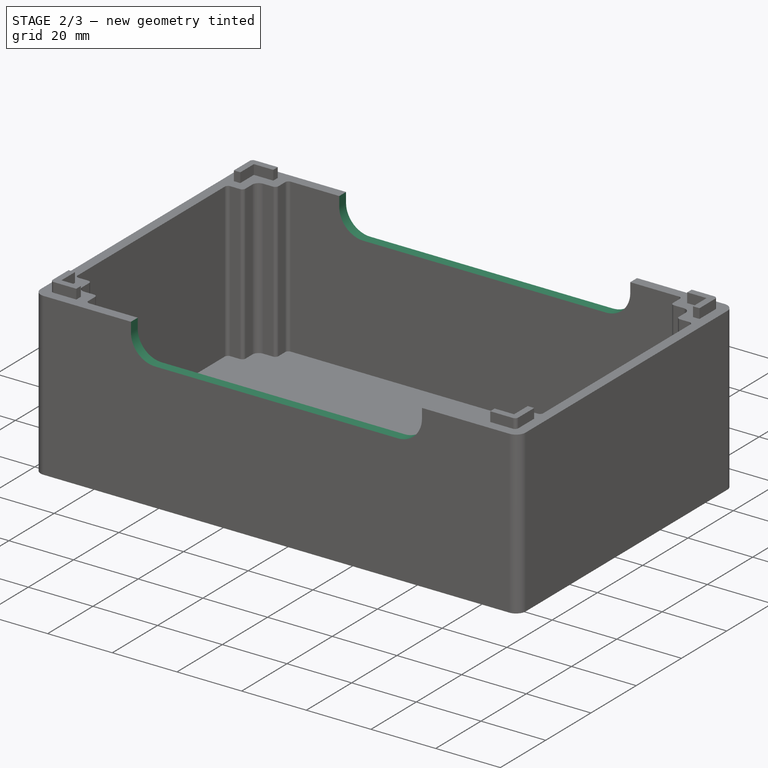
[diagram: stage 2 of 3 — iso view after this stage's code; geometry added in this stage tinted green]
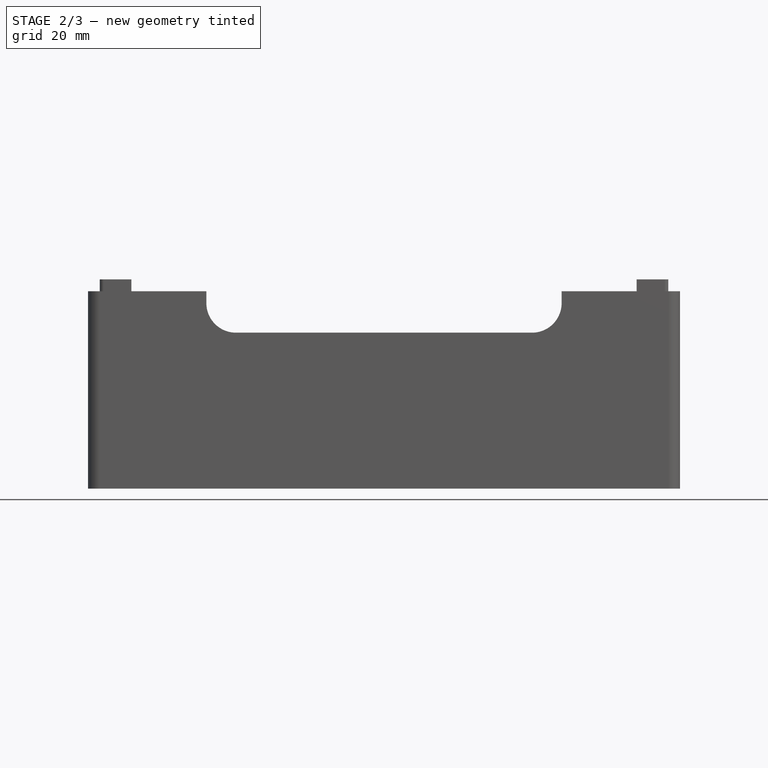
[diagram: stage 2 of 3 — front view after this stage's code; geometry added in this stage tinted green]
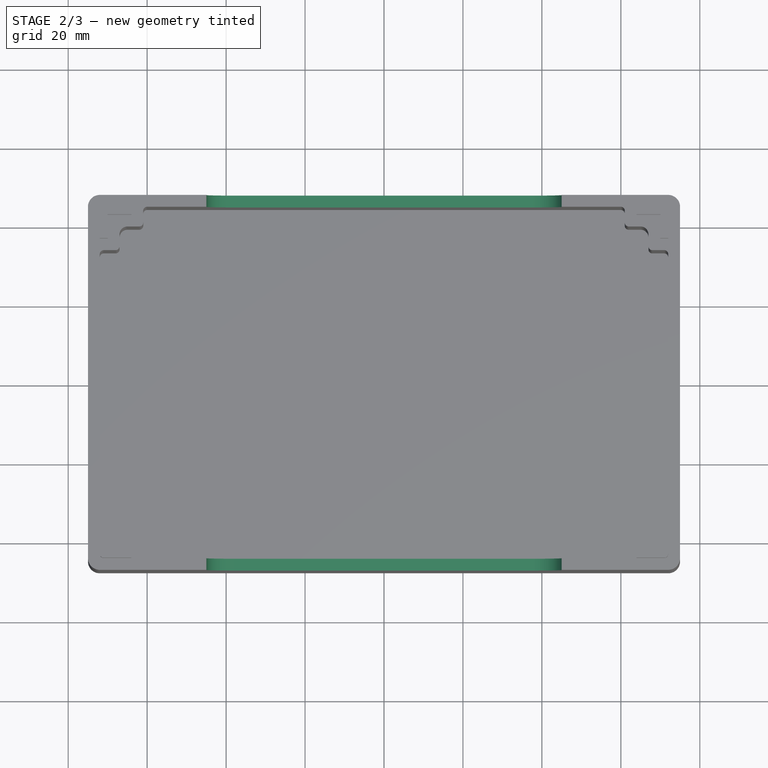
[diagram: stage 2 of 3 — top view after this stage's code; geometry added in this stage tinted green]
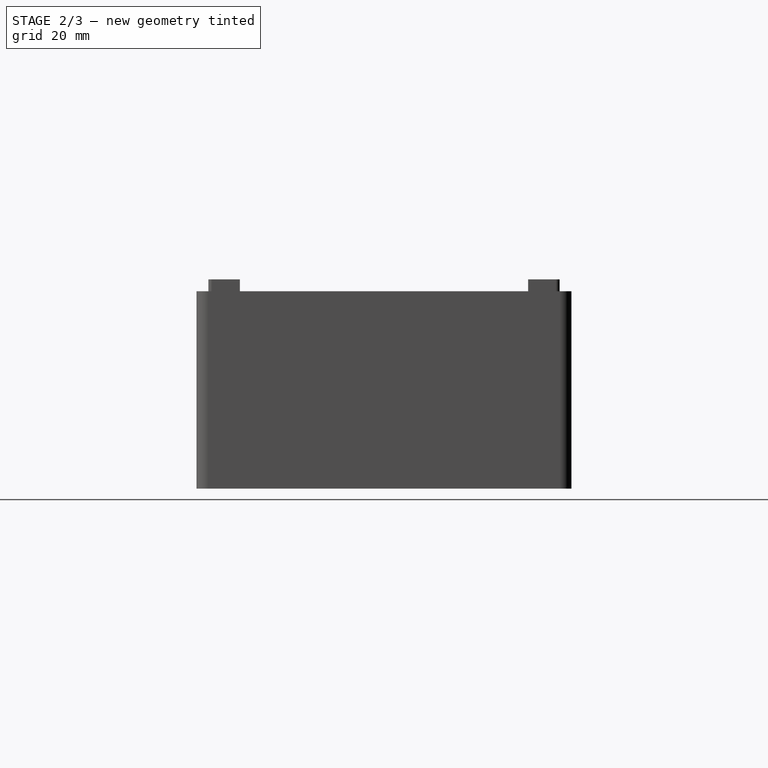
[diagram: stage 2 of 3 — right view after this stage's code; geometry added in this stage tinted green]
FEATURE [PartDesign::Pocket] Pocket001
  BaseFeature = -> Pad001
  Direction = (0,0,-1)
  Length = 3.4
  Length2 = 5
  Profile = -> Sketch006
  ReferenceAxis = -> Sketch006 [N_Axis]
  Refine = true
  Reversed = true
  Type = 0
  expr: Length = <<param>>.connector_height + 0.4
FEATURE [PartDesign::Pocket] Pocket002
  BaseFeature = -> Pocket001
  Direction = (0,1,2e-16)
  Length = 5
  Length2 = 5
  Midplane = true
  Profile = -> Sketch007
  ReferenceAxis = -> Sketch007 [N_Axis]
  Refine = true
  Type = 1
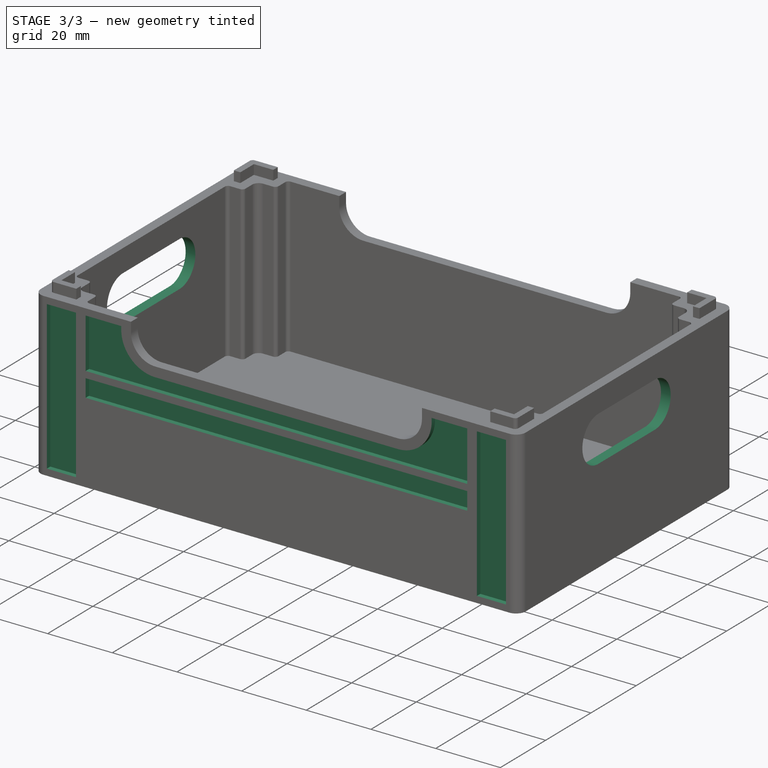
[diagram: stage 3 of 3 — iso view after this stage's code; geometry added in this stage tinted green]
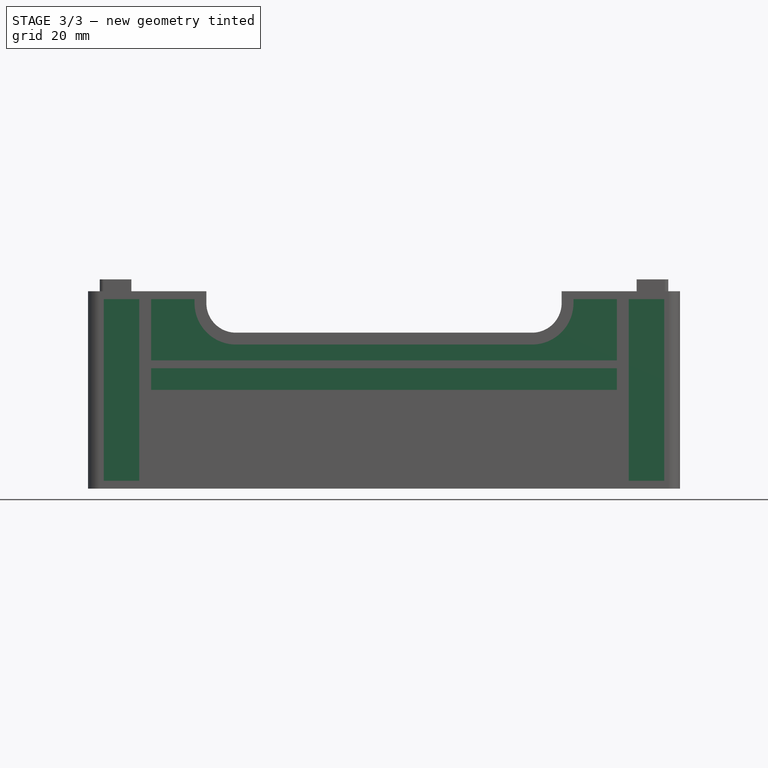
[diagram: stage 3 of 3 — front view after this stage's code; geometry added in this stage tinted green]
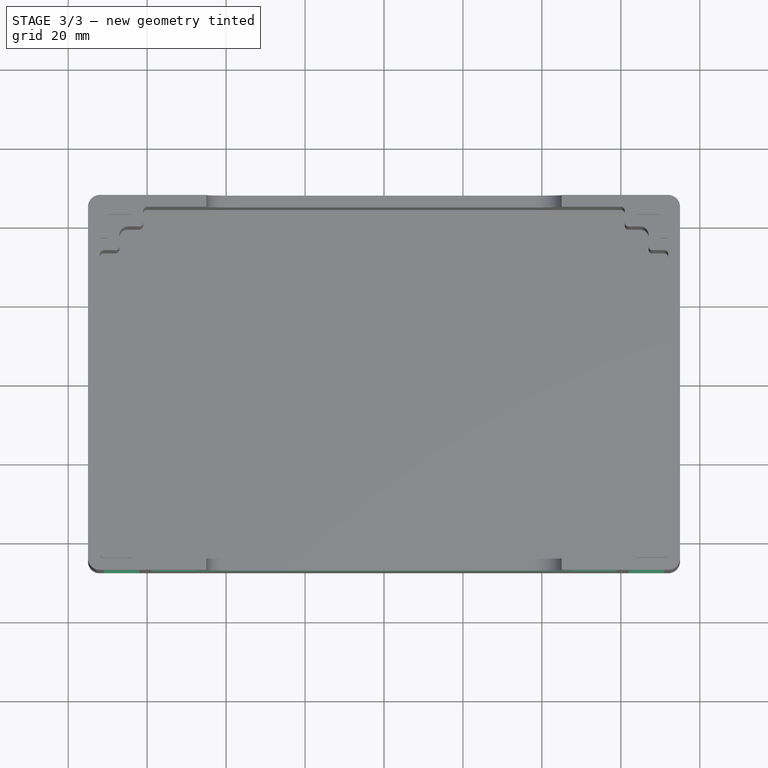
[diagram: stage 3 of 3 — top view after this stage's code; geometry added in this stage tinted green]
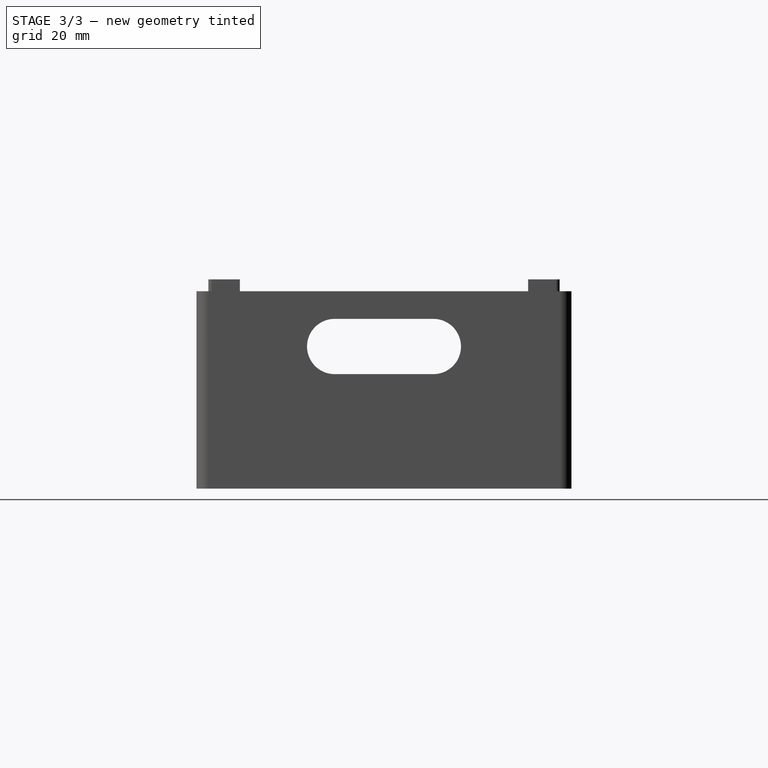
[diagram: stage 3 of 3 — right view after this stage's code; geometry added in this stage tinted green]
FEATURE [PartDesign::Pocket] Pocket003
  BaseFeature = -> Pocket002
  Direction = (-1,2e-16,-3e-16)
  Length = 5
  Length2 = 5
  Midplane = true
  Profile = -> Sketch008
  ReferenceAxis = -> Sketch008 [N_Axis]
  Refine = true
  Type = 1
FEATURE [Sketcher::SketchObject] Sketch009
  AttachmentOffset = pos=(0,0,47.5) rot=(0,0,1;0rad)
  FullyConstrained = true
  MapMode = 5
  Placement = pos=(0,-47.5,-1.05e-14) rot=(1,0,0;1.5708rad)
  Support = -> [XZ_Plane]
  expr: .AttachmentOffset.Base.z = <<param>>.crate_width / 2
  expr: Constraints[102] = Sketch001.Constraints[102]
  expr: Constraints[23] = Sketch001.Constraints[23]
  expr: Constraints[24] = Sketch001.Constraints[24]
  expr: Constraints[31] = Sketch001.Constraints[31]
  expr: Constraints[54] = Sketch001.Constraints[54]
  expr: Constraints[7] = Sketch001.Constraints[7]
  expr: Constraints[81] = Sketch001.Constraints[81]
  expr: Constraints[83] = Sketch001.Constraints[83]
  expr: Constraints[85] = Sketch001.Constraints[85]
  expr: Constraints[86] = Sketch001.Constraints[86]
  expr: Constraints[8] = Sketch001.Constraints[8]
  expr: Constraints[92] = Sketch001.Constraints[92]
  sketch-geometry (39):
    g0: LineSegment StartX=-73 StartY=0 StartZ=0 EndX=73 EndY=0 EndZ=0
    g1: LineSegment StartX=73 StartY=0 StartZ=0 EndX=73 EndY=50 EndZ=0
    g2: LineSegment StartX=-73 StartY=50 StartZ=0 EndX=-73 EndY=0 EndZ=0
    g3: LineSegment StartX=-45 StartY=50 StartZ=0 EndX=-45 EndY=47 EndZ=0
    g4: ArcOfCircle CenterX=-37.5 CenterY=47 CenterZ=0 NormalX=0 NormalY=0 NormalZ=1 AngleXU=0 Radius=7.5 StartAngle=3.14159 EndAngle=4.71239
    g5: LineSegment StartX=-37.5 StartY=39.5 StartZ=0 EndX=37.5 EndY=39.5 EndZ=0
    g6: ArcOfCircle CenterX=37.5 CenterY=47 CenterZ=0 NormalX=0 NormalY=0 NormalZ=1 AngleXU=0 Radius=7.5 StartAngle=4.71239 EndAngle=6.28319
    g7: LineSegment StartX=45 StartY=47 StartZ=0 EndX=45 EndY=50 EndZ=0
    g8: LineSegment StartX=-45 StartY=50 StartZ=0 EndX=-73 EndY=50 EndZ=0
    g9: LineSegment StartX=45 StartY=50 StartZ=0 EndX=73 EndY=50 EndZ=0
    g10: LineSegment StartX=-60 StartY=50 StartZ=0 EndX=-60 EndY=0 EndZ=0
    g11: LineSegment StartX=60 StartY=50 StartZ=0 EndX=60 EndY=0 EndZ=0
    g12: LineSegment StartX=-71 StartY=48 StartZ=0 EndX=-62 EndY=48 EndZ=0
    g13: LineSegment StartX=-62 StartY=48 StartZ=0 EndX=-62 EndY=2 EndZ=0
    g14: LineSegment StartX=-62 StartY=2 StartZ=0 EndX=-71 EndY=2 EndZ=0
    g15: LineSegment StartX=-71 StartY=2 StartZ=0 EndX=-71 EndY=48 EndZ=0
    g16: LineSegment StartX=62 StartY=48 StartZ=0 EndX=71 EndY=48 EndZ=0
    g17: LineSegment StartX=71 StartY=48 StartZ=0 EndX=71 EndY=2 EndZ=0
    g18: LineSegment StartX=71 StartY=2 StartZ=0 EndX=62 EndY=2 EndZ=0
    g19: LineSegment StartX=62 StartY=2 StartZ=0 EndX=62 EndY=48 EndZ=0
    g20: GeomPoint X=-66.5 Y=25 Z=0
    g21: GeomPoint X=66.5 Y=25 Z=0
    g22: ArcOfCircle CenterX=-37.5 CenterY=47 CenterZ=0 NormalX=0 NormalY=0 NormalZ=1 AngleXU=0 Radius=10.5 StartAngle=3.14159 EndAngle=4.71239
    g23: LineSegment StartX=-37.5 StartY=36.5 StartZ=0 EndX=37.5 EndY=36.5 EndZ=0
    g24: LineSegment StartX=59 StartY=48 StartZ=0 EndX=59 EndY=32.5 EndZ=0
    g25: LineSegment StartX=59 StartY=32.5 StartZ=0 EndX=-59 EndY=32.5 EndZ=0
    g26: LineSegment StartX=-59 StartY=32.5 StartZ=0 EndX=-59 EndY=48 EndZ=0
    g27: ArcOfCircle CenterX=37.5 CenterY=47 CenterZ=0 NormalX=0 NormalY=0 NormalZ=1 AngleXU=0 Radius=10.5 StartAngle=4.71239 EndAngle=6.28319
    g28: LineSegment StartX=45 StartY=47 StartZ=0 EndX=48 EndY=47 EndZ=0
    g29: LineSegment StartX=-48 StartY=47 StartZ=0 EndX=-45 EndY=47 EndZ=0
    g30: LineSegment StartX=48 StartY=47 StartZ=0 EndX=48 EndY=50 EndZ=0
    g31: LineSegment StartX=-59 StartY=30.5 StartZ=0 EndX=59 EndY=30.5 EndZ=0
    g32: LineSegment StartX=59 StartY=30.5 StartZ=0 EndX=59 EndY=25 EndZ=0
    g33: LineSegment StartX=59 StartY=25 StartZ=0 EndX=-59 EndY=25 EndZ=0
    g34: LineSegment StartX=-59 StartY=25 StartZ=0 EndX=-59 EndY=30.5 EndZ=0
    g35: LineSegment StartX=48 StartY=47 StartZ=0 EndX=48 EndY=48 EndZ=0
    g36: LineSegment StartX=48 StartY=48 StartZ=0 EndX=59 EndY=48 EndZ=0
    g37: LineSegment StartX=-59 StartY=48 StartZ=0 EndX=-48 EndY=48 EndZ=0
    g38: LineSegment StartX=-48 StartY=48 StartZ=0 EndX=-48 EndY=47 EndZ=0
  constraints (103):
    c: Coincident(g0,g1)
    c: Coincident(g8,g2)
    c: Coincident(g2,g0)
    c: Vertical(g1)
    c: Vertical(g2)
    c: PointOnObject(g0,g-1)
    c: Symmetric(g0,g0,g-2)
    c: DistanceX(g8,g1) = 146
    c: DistanceY(g2,g2) = 50
    c: Vertical(g3)
    c: Tangent(g3,g4) = -1.5708
    c: Tangent(g4,g5) = -1.5708
    c: Tangent(g5,g6) = -1.5708
    c: Tangent(g6,g7) = -1.5708
    c: Horizontal(g8)
    c: Coincident(g8,g3)
    c: Coincident(g9,g7)
    c: Coincident(g9,g1)
    c: Horizontal(g9)
    c: Equal(g2,g1)
    c: Horizontal(g5)
    c: Vertical(g7)
    c: Symmetric(g6,g4,g-2)
    c: DistanceX(g3,g7) = 90
    c: DistanceX(g5,g5) = 75
    c: PointOnObject(g10,g8)
    c: PointOnObject(g10,g0)
    c: Vertical(g10)
    c: PointOnObject(g11,g9)
    c: Vertical(g11)
    c: Symmetric(g10,g11,g-2)
    c: DistanceX(g10,g11) = 120
    c: Coincident(g12,g13)
    c: Coincident(g13,g14)
    c: Coincident(g14,g15)
    c: Coincident(g15,g12)
    c: Horizontal(g12)
    c: Horizontal(g14)
    c: Vertical(g13)
    c: Vertical(g15)
    c: Coincident(g16,g17)
    c: Coincident(g17,g18)
    c: Coincident(g18,g19)
    c: Coincident(g19,g16)
    c: Horizontal(g16)
    c: Horizontal(g18)
    c: Vertical(g17)
    c: Vertical(g19)
    c: Symmetric(g0,g10,g20)
    c: Symmetric(g11,g0,g21)
    c: Symmetric(g18,g16,g21)
    c: Symmetric(g13,g12,g20)
    c: Equal(g13,g19)
    c: Equal(g14,g18)
    c: DistanceX(g0,g14) = 2
    c: Tangent(g22,g23) = -1.5708
    c: Coincident(g24,g25)
    c: Coincident(g25,g26)
    c: Vertical(g26)
    c: Vertical(g24)
    c: Coincident(g27,g6)
    c: Coincident(g22,g4)
    c: Coincident(g28,g6)
    c: Horizontal(g28)
    c: Horizontal(g24,g16)
    c: Coincident(g29,g3)
    c: Horizontal(g29)
    c: Horizontal(g23)
    c: PointOnObject(g30,g9)
    c: Vertical(g30)
    c: Equal(g30,g28)
    c: Symmetric(g25,g24,g-2)
    c: Coincident(g31,g32)
    c: Coincident(g32,g33)
    c: Coincident(g33,g34)
    c: Coincident(g34,g31)
    c: Horizontal(g31)
    c: Horizontal(g33)
    c: Vertical(g32)
    c: Vertical(g34)
    c: Vertical(g31,g25)
    c: DistanceY(g31,g25) = 2
    c: Vertical(g31,g24)
    c: DistanceX(g33,g33) = 118
    c: Tangent(g27,g23) = -1.5708
    c: DistanceY(g24,g23) = 4
    c: DistanceY(g32,g1) = 25
    c: Coincident(g35,g27)
    c: PointOnObject(g35,g30)
    c: Coincident(g36,g35)
    c: Horizontal(g36)
    c: Coincident(g36,g24)
    c: DistanceY(g16,g1) = 2
    c: Coincident(g26,g37)
    c: Horizontal(g37)
    c: Coincident(g37,g38)
    c: Coincident(g38,g22)
    c: Coincident(g22,g29)
    c: Vertical(g38)
    c: Horizontal(g37,g35)
    c: Coincident(g28,g27)
    c: Coincident(g30,g27)
    c: DistanceY(g7,g7) = 3
FEATURE [PartDesign::Pocket] Pocket004
  BaseFeature = -> Pocket003
  Direction = (0,1,2e-16)
  Length = 1.5
  Length2 = 5
  Profile = -> Sketch009
  ReferenceAxis = -> Sketch009 [N_Axis]
  Refine = true
  Type = 0
  expr: Length = <<param>>.rim_thickness / 2
FEATURE [PartDesign::Mirrored] Mirrored
  BaseFeature = -> Pocket004
  MirrorPlane = -> XZ_Plane
  Originals = -> [Pocket004]
  Refine = true
FEATURE [PartDesign::Body] Body  label="MainBody"
  Group = -> [Sketch,Sketch001,Sketch002,Sketch003,Pad,Sketch004,Sketch005,Sketch006,Sketch007,Sketch008,Pocket,Pad001,Pocket001,Pocket002,Pocket003,Sketch009,Pocket004,Mirrored]
  Origin = -> Origin
  Tip = -> Mirrored
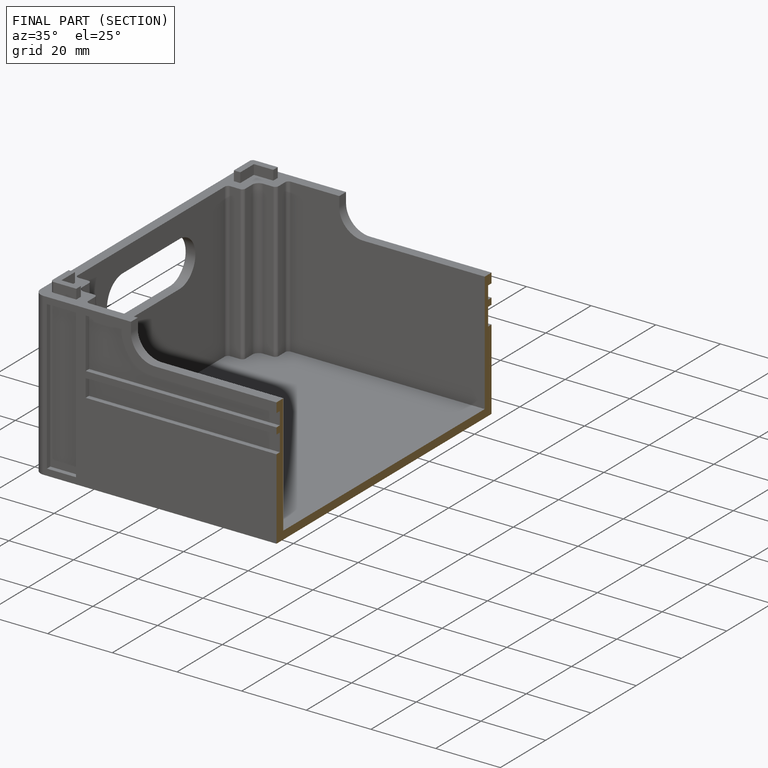
[diagram: finished part — half-section view (interior)]
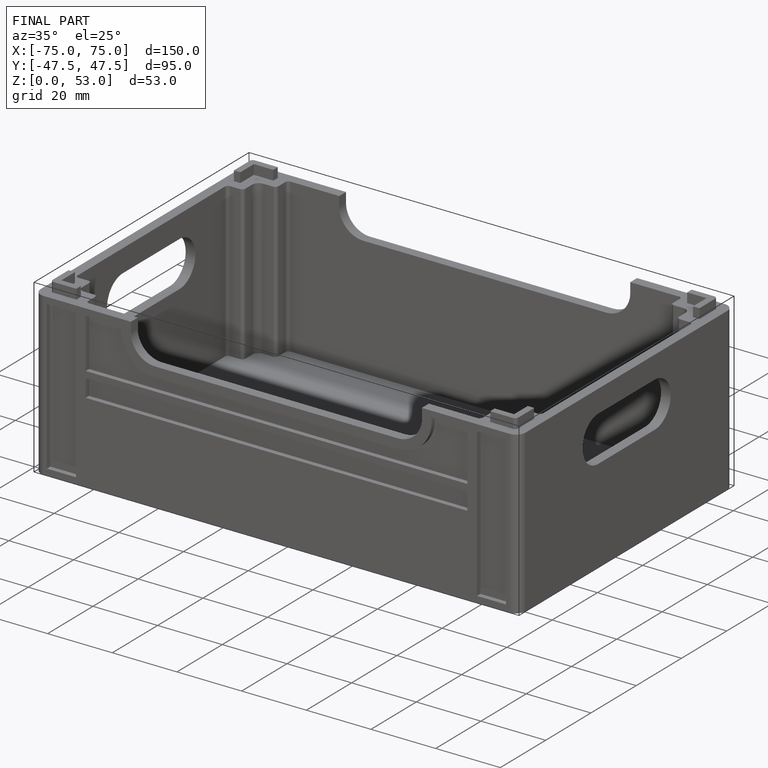
[diagram: finished part — iso view with bounding-box wireframe]
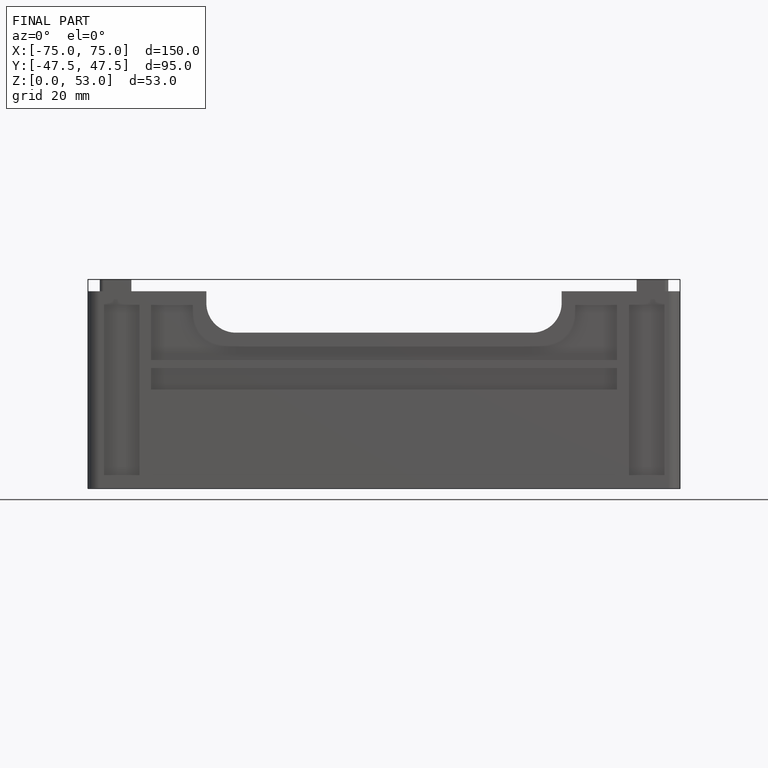
[diagram: finished part — front view with bounding-box wireframe]
